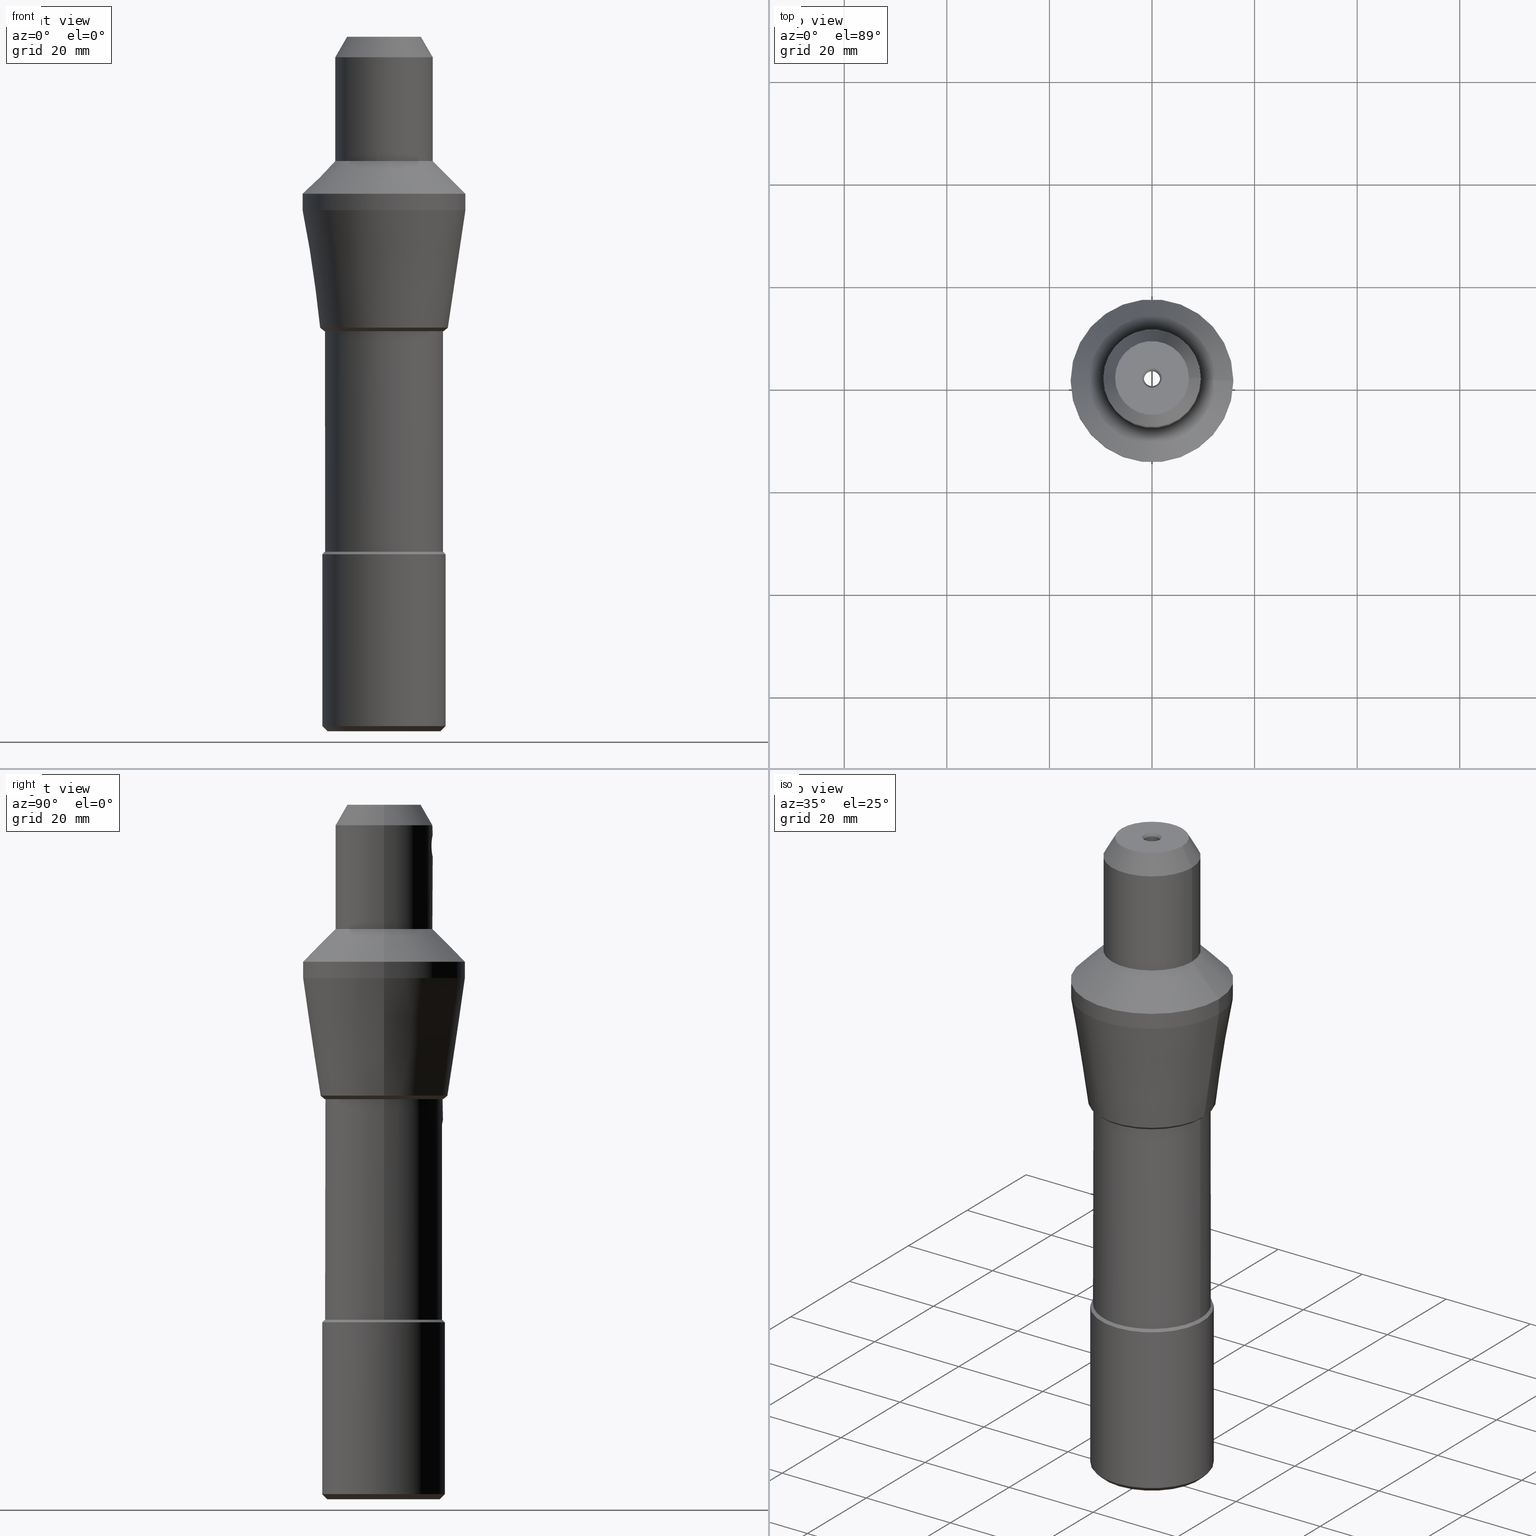
[diagram: canonical four-view strip — front | top / right | iso, engineering-drawing reading convention]
A machine part, canonical four-view strip (front | top / right | iso — engineering-drawing reading convention). The complete STEP part file that produces these views, byte-faithful:
ISO-10303-21;
HEADER;
FILE_DESCRIPTION (( 'STEP AP214' ),
    '1' );
FILE_NAME ('830-008-1.33.STEP',
    '2020-11-02T21:33:37',
    ( '' ),
    ( '' ),
    'SwSTEP 2.0',
    'SolidWorks 2020',
    '' );
FILE_SCHEMA (( 'AUTOMOTIVE_DESIGN' ));
ENDSEC;

DATA;
#1 = DIRECTION ( 'NONE',  ( 1.000000000000000000, 0.0000000000000000000, 0.0000000000000000000 ) ) ;
#2 = VECTOR ( 'NONE', #225, 1000.000000000000000 ) ;
#3 = MECHANICAL_DESIGN_GEOMETRIC_PRESENTATION_REPRESENTATION (  '', ( #96 ), #41 ) ;
#4 = DIRECTION ( 'NONE',  ( -0.0000000000000000000, -0.0000000000000000000, 1.000000000000000000 ) ) ;
#5 = CARTESIAN_POINT ( 'NONE',  ( 0.0000000000000000000, 0.7251645601360490190, 25.80000000000002558 ) ) ;
#6 = CARTESIAN_POINT ( 'NONE',  ( 0.0000000000000000000, 0.0000000000000000000, -23.59999999999975984 ) ) ;
#7 = DIRECTION ( 'NONE',  ( -0.0000000000000000000, -1.000000000000000000, -0.0000000000000000000 ) ) ;
#8 = EDGE_CURVE ( 'NONE', #590, #303, #624, .T. ) ;
#9 = CARTESIAN_POINT ( 'NONE',  ( 1.085126047791115322, 9.441393690589142906, 23.92289989804093153 ) ) ;
#10 = B_SPLINE_CURVE_WITH_KNOTS ( 'NONE', 3,
 ( #207, #213, #598, #203 ),
 .UNSPECIFIED., .F., .F.,
 ( 4, 4 ),
 ( 0.002821443156850665570, 0.004247716749108804840 ),
 .UNSPECIFIED. ) ;
#11 = DIRECTION ( 'NONE',  ( 1.000000000000000000, 0.0000000000000000000, 0.0000000000000000000 ) ) ;
#12 = CARTESIAN_POINT ( 'NONE',  ( -0.9689869363996819196, 1.265011497681876262, 27.72380231135396400 ) ) ;
#13 = VERTEX_POINT ( 'NONE', #524 ) ;
#14 = CARTESIAN_POINT ( 'NONE',  ( 2.100000000000000089, 42.79774680604187154, -36.35944640912221359 ) ) ;
#15 = AXIS2_PLACEMENT_3D ( 'NONE', #805, #691, #1 ) ;
#16 = VERTEX_POINT ( 'NONE', #577 ) ;
#17 = EDGE_CURVE ( 'NONE', #422, #798, #499, .T. ) ;
#18 = DIRECTION ( 'NONE',  ( -1.000000000000000000, 0.0000000000000000000, 0.0000000000000000000 ) ) ;
#19 = FACE_OUTER_BOUND ( 'NONE', #804, .T. ) ;
#20 = VERTEX_POINT ( 'NONE', #698 ) ;
#21 = CARTESIAN_POINT ( 'NONE',  ( 0.0000000000000000000, 0.0000000000000000000, -23.59999999999975984 ) ) ;
#22 = DIRECTION ( 'NONE',  ( 0.0000000000000000000, -0.0000000000000000000, 1.000000000000000000 ) ) ;
#23 = ORIENTED_EDGE ( 'NONE', *, *, #401, .T. ) ;
#24 = FACE_OUTER_BOUND ( 'NONE', #678, .T. ) ;
#25 = AXIS2_PLACEMENT_3D ( 'NONE', #729, #407, #151 ) ;
#26 = CARTESIAN_POINT ( 'NONE',  ( 1.411632161975112432, 0.7251645601360490190, 24.17833584263650692 ) ) ;
#27 = AXIS2_PLACEMENT_3D ( 'NONE', #531, #786, #220 ) ;
#28 = AXIS2_PLACEMENT_3D ( 'NONE', #472, #22, #593 ) ;
#29 = ORIENTED_EDGE ( 'NONE', *, *, #421, .T. ) ;
#30 = APPLICATION_PROTOCOL_DEFINITION ( 'draft international standard', 'automotive_design', 1998, #67 ) ;
#31 = DIRECTION ( 'NONE',  ( -0.0000000000000000000, -0.0000000000000000000, 1.000000000000000000 ) ) ;
#32 = CARTESIAN_POINT ( 'NONE',  ( 1.266608670461890407, 0.9663356702260388342, 24.05907208842330647 ) ) ;
#33 = EDGE_LOOP ( 'NONE', ( #232 ) ) ;
#34 = EDGE_CURVE ( 'NONE', #743, #152, #157, .T. ) ;
#35 = LINE ( 'NONE', #540, #765 ) ;
#36 = EDGE_LOOP ( 'NONE', ( #45 ) ) ;
#37 = ORIENTED_EDGE ( 'NONE', *, *, #401, .F. ) ;
#38 = PLANE ( 'NONE',  #753 ) ;
#39 = VECTOR ( 'NONE', #194, 1000.000000000000000 ) ;
#40 = EDGE_LOOP ( 'NONE', ( #23 ) ) ;
#41 =( GEOMETRIC_REPRESENTATION_CONTEXT ( 3 ) GLOBAL_UNCERTAINTY_ASSIGNED_CONTEXT ( ( #648 ) ) GLOBAL_UNIT_ASSIGNED_CONTEXT ( ( #719, #282, #795 ) ) REPRESENTATION_CONTEXT ( 'NONE', 'WORKASPACE' ) );
#42 = VERTEX_POINT ( 'NONE', #673 ) ;
#43 = ADVANCED_FACE ( 'NONE', ( #676, #365 ), #619, .T. ) ;
#44 = DIRECTION ( 'NONE',  ( 0.0000000000000000000, 0.0000000000000000000, -1.000000000000000000 ) ) ;
#45 = ORIENTED_EDGE ( 'NONE', *, *, #633, .F. ) ;
#46 = CARTESIAN_POINT ( 'NONE',  ( -2.100000000000000089, 11.86560154395885647, -100.5999999999998664 ) ) ;
#47 = EDGE_LOOP ( 'NONE', ( #605, #423, #594, #296 ) ) ;
#48 = DIRECTION ( 'NONE',  ( -0.0000000000000000000, -0.0000000000000000000, 1.000000000000000000 ) ) ;
#49 = ORIENTED_EDGE ( 'NONE', *, *, #392, .T. ) ;
#50 = CARTESIAN_POINT ( 'NONE',  ( -1.719978557535364549, 9.345186104629704005, 27.12051739696791230 ) ) ;
#51 = ORIENTED_EDGE ( 'NONE', *, *, #17, .T. ) ;
#52 = DIRECTION ( 'NONE',  ( -1.000000000000000000, 0.0000000000000000000, -0.0000000000000000000 ) ) ;
#53 = CARTESIAN_POINT ( 'NONE',  ( 1.467863262598873231, 11.41159724547885190, -27.92280294470764801 ) ) ;
#54 = AXIS2_PLACEMENT_3D ( 'NONE', #521, #322, #188 ) ;
#55 = AXIS2_PLACEMENT_3D ( 'NONE', #510, #66, #755 ) ;
#56 = CYLINDRICAL_SURFACE ( 'NONE', #15, 12.04999999999994920 ) ;
#57 = CONICAL_SURFACE ( 'NONE', #27, 12.04999999999994920, 0.7853981633974482790 ) ;
#58 = CARTESIAN_POINT ( 'NONE',  ( -2.100000000000000089, 42.79774680604187154, -36.35944640912221359 ) ) ;
#59 = EDGE_LOOP ( 'NONE', ( #541, #739, #297, #371 ) ) ;
#60 = ADVANCED_FACE ( 'NONE', ( #270 ), #383, .F. ) ;
#61 = CARTESIAN_POINT ( 'NONE',  ( -1.420791098050039336, 9.393697889959920388, 27.41979960619237389 ) ) ;
#62 = B_SPLINE_CURVE_WITH_KNOTS ( 'NONE', 3,
 ( #535, #410, #782, #218 ),
 .UNSPECIFIED., .F., .F.,
 ( 4, 4 ),
 ( 0.002523258221607827586, 0.003236126265176263953 ),
 .UNSPECIFIED. ) ;
#63 = CARTESIAN_POINT ( 'NONE',  ( -2.100000000000000089, 11.54999999999989413, -66.59999999999976694 ) ) ;
#64 = CARTESIAN_POINT ( 'NONE',  ( 0.0000000000000000000, 0.0000000000000000000, -101.5999999999998664 ) ) ;
#65 = CARTESIAN_POINT ( 'NONE',  ( 1.311922724764552406, 9.409715056579662118, 27.50912977286413152 ) ) ;
#66 = DIRECTION ( 'NONE',  ( 0.0000000000000000000, -0.0000000000000000000, 1.000000000000000000 ) ) ;
#67 = APPLICATION_CONTEXT ( 'automotive_design' ) ;
#68 = CARTESIAN_POINT ( 'NONE',  ( -1.078219977287355302, 1.172835807868646718, 27.66348308228828401 ) ) ;
#69 = CARTESIAN_POINT ( 'NONE',  ( 0.9524855186257653594, 9.453023983040029776, 27.73259253693215953 ) ) ;
#70 = CIRCLE ( 'NONE', #212, 11.49999999999998224 ) ;
#71 = DIRECTION ( 'NONE',  ( 0.0000000000000000000, -1.000000000000000000, 0.0000000000000000000 ) ) ;
#72 = EDGE_CURVE ( 'NONE', #303, #311, #651, .T. ) ;
#73 = CARTESIAN_POINT ( 'NONE',  ( 1.266878935582128163, 0.9659241473628297214, 27.54070789093612959 ) ) ;
#74 = CARTESIAN_POINT ( 'NONE',  ( 9.499999999999953815, 0.0000000000000000000, 29.80000000000018900 ) ) ;
#75 = FACE_OUTER_BOUND ( 'NONE', #793, .T. ) ;
#76 = CARTESIAN_POINT ( 'NONE',  ( -0.3034399793380838650, 1.564895221819775140, 27.93353750776525146 ) ) ;
#77 = CARTESIAN_POINT ( 'NONE',  ( 11.49999999999998224, 0.0000000000000000000, -23.59999999999975984 ) ) ;
#78 = CARTESIAN_POINT ( 'NONE',  ( 0.0000000000000000000, 0.0000000000000000000, -22.90768889564642663 ) ) ;
#79 = CARTESIAN_POINT ( 'NONE',  ( -2.100000000000000089, 10.35000000000002274, -34.51723925166061235 ) ) ;
#80 = CARTESIAN_POINT ( 'NONE',  ( 2.100000000000000089, 10.35000000000002274, -101.5999999999998380 ) ) ;
#81 = EDGE_CURVE ( 'NONE', #763, #763, #196, .T. ) ;
#82 = AXIS2_PLACEMENT_3D ( 'NONE', #14, #11, #200 ) ;
#83 = FACE_OUTER_BOUND ( 'NONE', #487, .T. ) ;
#84 = CARTESIAN_POINT ( 'NONE',  ( 1.078219977287355302, 1.172835807868646718, 23.93651691771177070 ) ) ;
#85 = CARTESIAN_POINT ( 'NONE',  ( 1.895866052159855819, 0.0000000000000000000, 33.80000000000018900 ) ) ;
#86 = CARTESIAN_POINT ( 'NONE',  ( 0.0000000000000000000, 0.0000000000000000000, -67.09999999999982379 ) ) ;
#87 = CARTESIAN_POINT ( 'NONE',  ( 0.0000000000000000000, 0.0000000000000000000, 33.80000000000018900 ) ) ;
#88 = ORIENTED_EDGE ( 'NONE', *, *, #144, .T. ) ;
#89 = DIRECTION ( 'NONE',  ( 1.000000000000000000, 0.0000000000000000000, 0.0000000000000000000 ) ) ;
#90 = CARTESIAN_POINT ( 'NONE',  ( 1.346189765837958241, 0.8525571496561314966, 24.12136930568467008 ) ) ;
#91 = ORIENTED_EDGE ( 'NONE', *, *, #592, .T. ) ;
#92 = DIRECTION ( 'NONE',  ( 1.000000000000000000, 0.0000000000000000000, 0.0000000000000000000 ) ) ;
#93 = AXIS2_PLACEMENT_3D ( 'NONE', #78, #4, #386 ) ;
#94 = EDGE_CURVE ( 'NONE', #323, #323, #199, .T. ) ;
#95 = CARTESIAN_POINT ( 'NONE',  ( -1.266878935582128163, 0.9659241473628297214, 24.05929210906393223 ) ) ;
#96 = STYLED_ITEM ( 'NONE', ( #409 ), #217 ) ;
#97 = AXIS2_PLACEMENT_3D ( 'NONE', #325, #256, #768 ) ;
#98 = VERTEX_POINT ( 'NONE', #145 ) ;
#99 = DIRECTION ( 'NONE',  ( -1.000000000000000000, 0.0000000000000000000, 0.0000000000000000000 ) ) ;
#100 = CARTESIAN_POINT ( 'NONE',  ( -0.7297437009996590174, 1.416423740711345358, 23.77341155943213380 ) ) ;
#101 = ADVANCED_FACE ( 'NONE', ( #762, #263, #756 ), #192, .F. ) ;
#102 = ORIENTED_EDGE ( 'NONE', *, *, #120, .T. ) ;
#103 = FACE_OUTER_BOUND ( 'NONE', #111, .T. ) ;
#104 = EDGE_CURVE ( 'NONE', #327, #327, #264, .T. ) ;
#105 = EDGE_LOOP ( 'NONE', ( #281, #543 ) ) ;
#106 = CARTESIAN_POINT ( 'NONE',  ( 0.0000000000000000000, 0.0000000000000000000, 29.80000000000018900 ) ) ;
#107 = CIRCLE ( 'NONE', #545, 5.749999999999921840 ) ;
#108 = ORIENTED_EDGE ( 'NONE', *, *, #179, .F. ) ;
#109 = ORIENTED_EDGE ( 'NONE', *, *, #453, .F. ) ;
#110 = FACE_OUTER_BOUND ( 'NONE', #554, .T. ) ;
#111 = EDGE_LOOP ( 'NONE', ( #354 ) ) ;
#112 = CARTESIAN_POINT ( 'NONE',  ( 1.324052285478831914, 9.409401896662016540, 24.08321091675676584 ) ) ;
#113 = ORIENTED_EDGE ( 'NONE', *, *, #81, .F. ) ;
#114 = DIRECTION ( 'NONE',  ( 1.000000000000000000, 0.0000000000000000000, 0.0000000000000000000 ) ) ;
#115 = ORIENTED_EDGE ( 'NONE', *, *, #300, .T. ) ;
#116 = B_SPLINE_CURVE_WITH_KNOTS ( 'NONE', 3,
 ( #275, #787, #95, #342, #717, #100, #778, #589, #712, #783, #542, #476, #774, #349, #84, #32, #90, #26 ),
 .UNSPECIFIED., .F., .F.,
 ( 4, 2, 2, 2, 2, 2, 2, 2, 4 ),
 ( 0.0000000000000000000, 0.0004551596521008836643, 0.0009103193042017673287, 0.001365478956302651047, 0.001820638608403534657, 0.002275798260504418268, 0.002730957912605302094, 0.003186117564706185488, 0.003641277216807069315 ),
 .UNSPECIFIED. ) ;
#117 = CARTESIAN_POINT ( 'NONE',  ( 1.864385287903619570, 9.315596766772621606, 26.87987381485267235 ) ) ;
#118 = EDGE_LOOP ( 'NONE', ( #467 ) ) ;
#119 = CARTESIAN_POINT ( 'NONE',  ( 0.0000000000000000000, 0.7251645601360490190, 25.80000000000002558 ) ) ;
#120 = EDGE_CURVE ( 'NONE', #590, #303, #725, .T. ) ;
#121 = EDGE_LOOP ( 'NONE', ( #215, #299, #473, #285 ) ) ;
#122 = CIRCLE ( 'NONE', #569, 11.49999999999998224 ) ;
#123 = DIRECTION ( 'NONE',  ( 0.0000000000000000000, 0.0000000000000000000, -1.000000000000000000 ) ) ;
#124 = AXIS2_PLACEMENT_3D ( 'NONE', #785, #664, #426 ) ;
#125 = DIRECTION ( 'NONE',  ( -0.0000000000000000000, -0.0000000000000000000, 1.000000000000000000 ) ) ;
#126 = CARTESIAN_POINT ( 'NONE',  ( -2.100000000000000089, 11.30663522008203792, -28.32452941635697741 ) ) ;
#127 = CARTESIAN_POINT ( 'NONE',  ( -0.2841779234836807611, 9.496757530763613175, 27.93579813919632571 ) ) ;
#128 = UNCERTAINTY_MEASURE_WITH_UNIT (LENGTH_MEASURE( 1.000000000000000082E-05 ), #527, 'distance_accuracy_value', 'NONE');
#129 = CARTESIAN_POINT ( 'NONE',  ( 0.0000000000000000000, 0.0000000000000000000, -101.5999999999998664 ) ) ;
#130 = CARTESIAN_POINT ( 'NONE',  ( -1.411632161975112432, 0.7251645601360490190, 27.42166415736354068 ) ) ;
#131 = CARTESIAN_POINT ( 'NONE',  ( -2.150085911535069005, 9.253492885439001725, 25.93940395948164124 ) ) ;
#132 = EDGE_CURVE ( 'NONE', #98, #496, #451, .T. ) ;
#133 = CARTESIAN_POINT ( 'NONE',  ( -2.100000000000000089, 10.35000000000002274, -101.5999999999998380 ) ) ;
#134 = DIRECTION ( 'NONE',  ( 1.000000000000000000, 0.0000000000000000000, 0.0000000000000000000 ) ) ;
#135 = CARTESIAN_POINT ( 'NONE',  ( 0.0000000000000000000, 0.0000000000000000000, 14.80000000000017479 ) ) ;
#136 = AXIS2_PLACEMENT_3D ( 'NONE', #630, #688, #379 ) ;
#137 = CIRCLE ( 'NONE', #612, 9.499999999999953815 ) ;
#138 = CIRCLE ( 'NONE', #224, 1.895866052159855819 ) ;
#139 = FACE_OUTER_BOUND ( 'NONE', #444, .T. ) ;
#140 = DIRECTION ( 'NONE',  ( -0.0000000000000000000, -0.0000000000000000000, 1.000000000000000000 ) ) ;
#141 = CARTESIAN_POINT ( 'NONE',  ( 0.2831112863718656669, 9.496794767148502459, 23.66403597530471004 ) ) ;
#142 = MANIFOLD_SOLID_BREP ( 'Cut-Extrude2', #172 ) ;
#143 = CARTESIAN_POINT ( 'NONE',  ( -2.100000000000000089, 10.84861742343229984, -101.5999999999998664 ) ) ;
#144 = EDGE_CURVE ( 'NONE', #806, #301, #35, .T. ) ;
#145 = CARTESIAN_POINT ( 'NONE',  ( -2.100000000000000089, 10.35000000000002274, -34.51723925166061235 ) ) ;
#146 = CARTESIAN_POINT ( 'NONE',  ( 1.586999999999949562, 0.0000000000000000000, 33.30000000000018900 ) ) ;
#147 = DIRECTION ( 'NONE',  ( -0.0000000000000000000, -0.0000000000000000000, 1.000000000000000000 ) ) ;
#148 = ADVANCED_FACE ( 'NONE', ( #259, #284 ), #482, .F. ) ;
#149 = AXIS2_PLACEMENT_3D ( 'NONE', #669, #230, #627 ) ;
#150 = DIRECTION ( 'NONE',  ( 1.000000000000000000, 0.0000000000000000000, 0.0000000000000000000 ) ) ;
#151 = DIRECTION ( 'NONE',  ( 1.000000000000000000, 0.0000000000000000000, 0.0000000000000000000 ) ) ;
#152 = VERTEX_POINT ( 'NONE', #655 ) ;
#153 = FACE_OUTER_BOUND ( 'NONE', #607, .T. ) ;
#154 = PLANE ( 'NONE',  #28 ) ;
#155 = ORIENTED_EDGE ( 'NONE', *, *, #443, .T. ) ;
#156 = ADVANCED_FACE ( 'NONE', ( #480, #660 ), #154, .F. ) ;
#157 = B_SPLINE_CURVE_WITH_KNOTS ( 'NONE', 3,
 ( #306, #167, #53, #818, #425, #249, #431, #184, #689, #126 ),
 .UNSPECIFIED., .F., .F.,
 ( 4, 2, 2, 2, 4 ),
 ( 0.0000000000000000000, 0.001130883958047212371, 0.002261767916094424742, 0.003392651874141637113, 0.004523535832188849484 ),
 .UNSPECIFIED. ) ;
#158 = CARTESIAN_POINT ( 'NONE',  ( 0.0000000000000000000, 0.0000000000000000000, 17.80000000000023164 ) ) ;
#159 = ORIENTED_EDGE ( 'NONE', *, *, #515, .F. ) ;
#160 = FACE_OUTER_BOUND ( 'NONE', #537, .T. ) ;
#161 = DIRECTION ( 'NONE',  ( 0.0000000000000000000, 0.0000000000000000000, -1.000000000000000000 ) ) ;
#162 = EDGE_LOOP ( 'NONE', ( #556 ) ) ;
#163 = FACE_OUTER_BOUND ( 'NONE', #730, .T. ) ;
#164 = EDGE_CURVE ( 'NONE', #42, #806, #445, .T. ) ;
#165 = EDGE_LOOP ( 'NONE', ( #685 ) ) ;
#166 = CYLINDRICAL_SURFACE ( 'NONE', #211, 9.499999999999953815 ) ;
#167 = CARTESIAN_POINT ( 'NONE',  ( 1.795522252043246558, 11.36318637418432331, -28.10288945346085754 ) ) ;
#168 = ORIENTED_EDGE ( 'NONE', *, *, #291, .F. ) ;
#169 = DIRECTION ( 'NONE',  ( 0.0000000000000000000, -0.0000000000000000000, 1.000000000000000000 ) ) ;
#170 = AXIS2_PLACEMENT_3D ( 'NONE', #119, #424, #732 ) ;
#171 = CARTESIAN_POINT ( 'NONE',  ( 2.100000000000000089, 10.35000000000002274, -34.51723925166061235 ) ) ;
#172 = CLOSED_SHELL ( 'NONE', ( #538, #490, #287, #376, #658, #773, #101, #337, #613, #148, #204, #737, #326, #705, #623, #571, #43, #505, #525, #156, #260, #385, #417, #60, #690, #355, #547 ) ) ;
#173 = CARTESIAN_POINT ( 'NONE',  ( -1.311632562071472163, 9.409753082532281709, 24.09066695454700380 ) ) ;
#174 = ORIENTED_EDGE ( 'NONE', *, *, #94, .T. ) ;
#175 = DIRECTION ( 'NONE',  ( -0.0000000000000000000, -0.0000000000000000000, 1.000000000000000000 ) ) ;
#176 = DIRECTION ( 'NONE',  ( 0.0000000000000000000, 0.0000000000000000000, -1.000000000000000000 ) ) ;
#177 = CARTESIAN_POINT ( 'NONE',  ( -0.9544398840162214848, 9.452831810159471715, 27.73165954105640552 ) ) ;
#178 = ORIENTED_EDGE ( 'NONE', *, *, #144, .F. ) ;
#179 = EDGE_CURVE ( 'NONE', #496, #798, #411, .T. ) ;
#180 = DIRECTION ( 'NONE',  ( -0.0000000000000000000, -0.0000000000000000000, 1.000000000000000000 ) ) ;
#181 = ORIENTED_EDGE ( 'NONE', *, *, #764, .F. ) ;
#182 = CARTESIAN_POINT ( 'NONE',  ( 2.093657991331931090, 9.267089453319414361, 26.36489831514277071 ) ) ;
#183 = DIRECTION ( 'NONE',  ( 1.000000000000000000, 0.0000000000000000000, 0.0000000000000000000 ) ) ;
#184 = CARTESIAN_POINT ( 'NONE',  ( -1.467469665440356064, 11.41165974144372086, -27.92256978922634758 ) ) ;
#185 = VECTOR ( 'NONE', #463, 1000.000000000000000 ) ;
#186 = CARTESIAN_POINT ( 'NONE',  ( -0.5607483400623441971, 9.484446319602861664, 27.88037306334883070 ) ) ;
#187 = FACE_OUTER_BOUND ( 'NONE', #162, .T. ) ;
#188 = DIRECTION ( 'NONE',  ( 1.000000000000000000, 0.0000000000000000000, 0.0000000000000000000 ) ) ;
#189 = EDGE_CURVE ( 'NONE', #433, #590, #116, .T. ) ;
#190 = CARTESIAN_POINT ( 'NONE',  ( 1.708774579096241863, 9.345392718376819730, 27.11230689840081354 ) ) ;
#191 = FACE_OUTER_BOUND ( 'NONE', #408, .T. ) ;
#192 = CYLINDRICAL_SURFACE ( 'NONE', #330, 1.586999999999949562 ) ;
#193 = VERTEX_POINT ( 'NONE', #657 ) ;
#194 = DIRECTION ( 'NONE',  ( -0.0000000000000000000, -0.0000000000000000000, 1.000000000000000000 ) ) ;
#195 = PRESENTATION_STYLE_ASSIGNMENT (( #642 ) ) ;
#196 = CIRCLE ( 'NONE', #54, 15.87499999999994493 ) ;
#197 = VERTEX_POINT ( 'NONE', #85 ) ;
#198 = AXIS2_PLACEMENT_3D ( 'NONE', #106, #746, #114 ) ;
#199 = CIRCLE ( 'NONE', #687, 5.749999999999921840 ) ;
#200 = DIRECTION ( 'NONE',  ( 0.0000000000000000000, 0.0000000000000000000, -1.000000000000000000 ) ) ;
#201 = CARTESIAN_POINT ( 'NONE',  ( 0.0000000000000000000, 0.0000000000000000000, 4.364367297826535541 ) ) ;
#202 = VERTEX_POINT ( 'NONE', #587 ) ;
#203 = CARTESIAN_POINT ( 'NONE',  ( 2.100000000000000089, 11.86560154395885647, -100.5999999999998664 ) ) ;
#204 = ADVANCED_FACE ( 'NONE', ( #19, #209 ), #586, .F. ) ;
#205 = FILL_AREA_STYLE ('',( #329 ) ) ;
#206 = VERTEX_POINT ( 'NONE', #146 ) ;
#207 = CARTESIAN_POINT ( 'NONE',  ( 2.100000000000000089, 10.84861742343229984, -101.5999999999998664 ) ) ;
#208 = PRODUCT_RELATED_PRODUCT_CATEGORY ( 'part', '', ( #614 ) ) ;
#209 = FACE_OUTER_BOUND ( 'NONE', #781, .T. ) ;
#210 = ORIENTED_EDGE ( 'NONE', *, *, #606, .F. ) ;
#211 = AXIS2_PLACEMENT_3D ( 'NONE', #368, #48, #245 ) ;
#212 = AXIS2_PLACEMENT_3D ( 'NONE', #539, #341, #465 ) ;
#213 = CARTESIAN_POINT ( 'NONE',  ( 2.100000000000000089, 11.18787052899706858, -101.2669296695036252 ) ) ;
#214 = CARTESIAN_POINT ( 'NONE',  ( -1.411632161975112432, 0.7251645601360490190, 4.364367297826535541 ) ) ;
#215 = ORIENTED_EDGE ( 'NONE', *, *, #392, .F. ) ;
#216 = EDGE_CURVE ( 'NONE', #197, #197, #138, .T. ) ;
#217 = ADVANCED_BREP_SHAPE_REPRESENTATION ( '830-008-1.33', ( #142, #124 ), #812 ) ;
#218 = CARTESIAN_POINT ( 'NONE',  ( 2.100000000000000089, 11.35748651771145923, -66.59999999999976694 ) ) ;
#219 = VERTEX_POINT ( 'NONE', #599 ) ;
#220 = DIRECTION ( 'NONE',  ( -1.000000000000000000, 0.0000000000000000000, 0.0000000000000000000 ) ) ;
#221 = DIRECTION ( 'NONE',  ( 1.000000000000000000, 0.0000000000000000000, 0.0000000000000000000 ) ) ;
#222 = ORIENTED_EDGE ( 'NONE', *, *, #715, .F. ) ;
#223 = EDGE_CURVE ( 'NONE', #202, #202, #559, .T. ) ;
#224 = AXIS2_PLACEMENT_3D ( 'NONE', #466, #403, #280 ) ;
#225 = DIRECTION ( 'NONE',  ( -0.0000000000000000000, -0.0000000000000000000, 1.000000000000000000 ) ) ;
#226 = AXIS2_PLACEMENT_3D ( 'NONE', #471, #92, #271 ) ;
#227 = VECTOR ( 'NONE', #176, 1000.000000000000000 ) ;
#228 = ORIENTED_EDGE ( 'NONE', *, *, #750, .F. ) ;
#229 = ORIENTED_EDGE ( 'NONE', *, *, #104, .F. ) ;
#230 = DIRECTION ( 'NONE',  ( -0.0000000000000000000, -0.0000000000000000000, 1.000000000000000000 ) ) ;
#231 = EDGE_LOOP ( 'NONE', ( #168 ) ) ;
#232 = ORIENTED_EDGE ( 'NONE', *, *, #562, .F. ) ;
#233 = FACE_OUTER_BOUND ( 'NONE', #501, .T. ) ;
#234 = EDGE_LOOP ( 'NONE', ( #815 ) ) ;
#235 = B_SPLINE_CURVE_WITH_KNOTS ( 'NONE', 3,
 ( #749, #608, #735, #450 ),
 .UNSPECIFIED., .F., .F.,
 ( 4, 4 ),
 ( 0.002523258221607827586, 0.003236126265176263953 ),
 .UNSPECIFIED. ) ;
#236 = CARTESIAN_POINT ( 'NONE',  ( -1.718128041106889770, 9.345485675796680880, 24.47763728572767405 ) ) ;
#237 = ORIENTED_EDGE ( 'NONE', *, *, #764, .T. ) ;
#238 = CARTESIAN_POINT ( 'NONE',  ( 0.0000000000000000000, 0.0000000000000000000, 33.80000000000018900 ) ) ;
#239 = CIRCLE ( 'NONE', #149, 11.54999999999989413 ) ;
#240 = DIRECTION ( 'NONE',  ( -0.0000000000000000000, -0.0000000000000000000, 1.000000000000000000 ) ) ;
#241 = VECTOR ( 'NONE', #261, 1000.000000000000000 ) ;
#242 = EDGE_CURVE ( 'NONE', #311, #433, #724, .T. ) ;
#243 = CARTESIAN_POINT ( 'NONE',  ( -1.878053057077292642, 9.313170279370908133, 26.88404759585064951 ) ) ;
#244 = EDGE_LOOP ( 'NONE', ( #788 ) ) ;
#245 = DIRECTION ( 'NONE',  ( 1.000000000000000000, 0.0000000000000000000, 0.0000000000000000000 ) ) ;
#246 = ORIENTED_EDGE ( 'NONE', *, *, #679, .F. ) ;
#247 = CARTESIAN_POINT ( 'NONE',  ( 1.618246020658700601, 9.361697275855199507, 27.22247114574780724 ) ) ;
#248 = CARTESIAN_POINT ( 'NONE',  ( 0.0000000000000000000, 0.7251645601360490190, 25.80000000000002558 ) ) ;
#249 = CARTESIAN_POINT ( 'NONE',  ( -0.3790474823127402138, 11.50005798455130090, -27.60132592127435558 ) ) ;
#250 = CARTESIAN_POINT ( 'NONE',  ( -2.136016940763032057, 9.256793651367043907, 26.08239612714654498 ) ) ;
#251 = DIRECTION ( 'NONE',  ( -0.0000000000000000000, -0.0000000000000000000, 1.000000000000000000 ) ) ;
#252 = EDGE_CURVE ( 'NONE', #42, #219, #418, .T. ) ;
#253 = AXIS2_PLACEMENT_3D ( 'NONE', #817, #548, #356 ) ;
#254 = CARTESIAN_POINT ( 'NONE',  ( 5.421010862427522170E-17, 9.499999999999953815, 23.65000000000001279 ) ) ;
#255 = DIRECTION ( 'NONE',  ( -0.0000000000000000000, -0.0000000000000000000, 1.000000000000000000 ) ) ;
#256 = DIRECTION ( 'NONE',  ( 0.0000000000000000000, -1.000000000000000000, -0.0000000000000000000 ) ) ;
#257 = APPLICATION_PROTOCOL_DEFINITION ( 'draft international standard', 'automotive_design', 1998, #346 ) ;
#258 = DIRECTION ( 'NONE',  ( 1.000000000000000000, 0.0000000000000000000, 0.0000000000000000000 ) ) ;
#259 = FACE_OUTER_BOUND ( 'NONE', #33, .T. ) ;
#260 = ADVANCED_FACE ( 'NONE', ( #163 ), #650, .T. ) ;
#261 = DIRECTION ( 'NONE',  ( 0.0000000000000000000, 1.000000000000000000, 0.0000000000000000000 ) ) ;
#262 = LINE ( 'NONE', #63, #400 ) ;
#263 = FACE_OUTER_BOUND ( 'NONE', #731, .T. ) ;
#264 = CIRCLE ( 'NONE', #485, 15.87499999999994493 ) ;
#265 = CARTESIAN_POINT ( 'NONE',  ( 5.421010862427522170E-17, 9.499999999999953815, 23.65000000000001279 ) ) ;
#266 = AXIS2_PLACEMENT_3D ( 'NONE', #742, #684, #680 ) ;
#267 = EDGE_CURVE ( 'NONE', #311, #433, #359, .T. ) ;
#268 = AXIS2_PLACEMENT_3D ( 'NONE', #585, #479, #99 ) ;
#269 = CARTESIAN_POINT ( 'NONE',  ( 0.0000000000000000000, 0.0000000000000000000, -98.59999999999986642 ) ) ;
#270 = FACE_OUTER_BOUND ( 'NONE', #367, .T. ) ;
#271 = DIRECTION ( 'NONE',  ( 0.0000000000000000000, 0.0000000000000000000, -1.000000000000000000 ) ) ;
#272 = DIRECTION ( 'NONE',  ( -0.0000000000000000000, -0.0000000000000000000, 1.000000000000000000 ) ) ;
#273 = FACE_OUTER_BOUND ( 'NONE', #121, .T. ) ;
#274 = EDGE_CURVE ( 'NONE', #98, #422, #672, .T. ) ;
#275 = CARTESIAN_POINT ( 'NONE',  ( -1.411632161975112432, 0.7251645601360490190, 24.17833584263650692 ) ) ;
#276 = EDGE_LOOP ( 'NONE', ( #681 ) ) ;
#277 = CIRCLE ( 'NONE', #483, 1.586999999999949562 ) ;
#278 = CARTESIAN_POINT ( 'NONE',  ( -2.100000000000000089, 11.35748651771145923, -66.59999999999976694 ) ) ;
#279 = AXIS2_PLACEMENT_3D ( 'NONE', #721, #486, #532 ) ;
#280 = DIRECTION ( 'NONE',  ( 1.000000000000000000, 0.0000000000000000000, 0.0000000000000000000 ) ) ;
#281 = ORIENTED_EDGE ( 'NONE', *, *, #8, .T. ) ;
#282 =( NAMED_UNIT ( * ) PLANE_ANGLE_UNIT ( ) SI_UNIT ( $, .RADIAN. ) );
#283 = DIRECTION ( 'NONE',  ( 0.0000000000000000000, 0.0000000000000000000, -1.000000000000000000 ) ) ;
#284 = FACE_BOUND ( 'NONE', #40, .T. ) ;
#285 = ORIENTED_EDGE ( 'NONE', *, *, #313, .F. ) ;
#286 = SHAPE_DEFINITION_REPRESENTATION ( #470, #217 ) ;
#287 = ADVANCED_FACE ( 'NONE', ( #110, #233 ), #364, .T. ) ;
#288 = DIRECTION ( 'NONE',  ( -0.0000000000000000000, -0.0000000000000000000, 1.000000000000000000 ) ) ;
#289 = ORIENTED_EDGE ( 'NONE', *, *, #633, .T. ) ;
#290 = ORIENTED_EDGE ( 'NONE', *, *, #252, .F. ) ;
#291 = EDGE_CURVE ( 'NONE', #206, #206, #429, .T. ) ;
#292 = AXIS2_PLACEMENT_3D ( 'NONE', #506, #251, #696 ) ;
#293 = DIRECTION ( 'NONE',  ( 1.000000000000000000, 0.0000000000000000000, 0.0000000000000000000 ) ) ;
#294 = PRESENTATION_LAYER_ASSIGNMENT (  '', '', ( #96 ) ) ;
#295 = ORIENTED_EDGE ( 'NONE', *, *, #803, .F. ) ;
#296 = ORIENTED_EDGE ( 'NONE', *, *, #242, .F. ) ;
#297 = ORIENTED_EDGE ( 'NONE', *, *, #427, .T. ) ;
#298 = DIRECTION ( 'NONE',  ( 1.000000000000000000, -0.0000000000000000000, -0.0000000000000000000 ) ) ;
#299 = ORIENTED_EDGE ( 'NONE', *, *, #715, .T. ) ;
#300 = EDGE_CURVE ( 'NONE', #331, #331, #305, .T. ) ;
#301 = VERTEX_POINT ( 'NONE', #420 ) ;
#302 = CARTESIAN_POINT ( 'NONE',  ( 1.932326067381938017, 9.301566654919163568, 24.84692496624836622 ) ) ;
#303 = VERTEX_POINT ( 'NONE', #799 ) ;
#304 = FACE_OUTER_BOUND ( 'NONE', #544, .T. ) ;
#305 = CIRCLE ( 'NONE', #198, 9.499999999999953815 ) ;
#306 = CARTESIAN_POINT ( 'NONE',  ( 2.100000000000000089, 11.30663522008203792, -28.32452941635697741 ) ) ;
#307 = AXIS2_PLACEMENT_3D ( 'NONE', #86, #338, #776 ) ;
#308 = COLOUR_RGB ( '',0.5019607843137254832, 0.5019607843137254832, 0.5019607843137254832 ) ;
#309 = CARTESIAN_POINT ( 'NONE',  ( 0.5640542536392166850, 9.486801734380327034, 27.89354080613243170 ) ) ;
#310 = FACE_OUTER_BOUND ( 'NONE', #105, .T. ) ;
#311 = VERTEX_POINT ( 'NONE', #360 ) ;
#312 = CARTESIAN_POINT ( 'NONE',  ( -1.421749722328163879, 9.393542694191513220, 24.18115642957892675 ) ) ;
#313 = EDGE_CURVE ( 'NONE', #601, #801, #239, .T. ) ;
#314 = DIRECTION ( 'NONE',  ( 0.0000000000000000000, 0.0000000000000000000, -1.000000000000000000 ) ) ;
#315 =( NAMED_UNIT ( * ) PLANE_ANGLE_UNIT ( ) SI_UNIT ( $, .RADIAN. ) );
#316 = DIRECTION ( 'NONE',  ( -0.0000000000000000000, -0.0000000000000000000, 1.000000000000000000 ) ) ;
#317 = DIRECTION ( 'NONE',  ( -0.0000000000000000000, -0.0000000000000000000, 1.000000000000000000 ) ) ;
#318 = DIRECTION ( 'NONE',  ( 1.000000000000000000, 0.0000000000000000000, 0.0000000000000000000 ) ) ;
#319 = AXIS2_PLACEMENT_3D ( 'NONE', #87, #791, #221 ) ;
#320 = VERTEX_POINT ( 'NONE', #77 ) ;
#321 = CYLINDRICAL_SURFACE ( 'NONE', #136, 2.150000000000012790 ) ;
#322 = DIRECTION ( 'NONE',  ( -0.0000000000000000000, -0.0000000000000000000, 1.000000000000000000 ) ) ;
#323 = VERTEX_POINT ( 'NONE', #640 ) ;
#324 = PLANE ( 'NONE',  #82 ) ;
#325 = CARTESIAN_POINT ( 'NONE',  ( -2.100000000000000089, 10.35000000000002274, -34.51723925166061235 ) ) ;
#326 = ADVANCED_FACE ( 'NONE', ( #618, #304 ), #727, .F. ) ;
#327 = VERTEX_POINT ( 'NONE', #647 ) ;
#328 = FACE_BOUND ( 'NONE', #663, .T. ) ;
#329 = FILL_AREA_STYLE_COLOUR ( '', #308 ) ;
#330 = AXIS2_PLACEMENT_3D ( 'NONE', #201, #393, #576 ) ;
#331 = VERTEX_POINT ( 'NONE', #74 ) ;
#332 = AXIS2_PLACEMENT_3D ( 'NONE', #6, #517, #454 ) ;
#333 = AXIS2_PLACEMENT_3D ( 'NONE', #347, #31, #150 ) ;
#334 = MECHANICAL_DESIGN_GEOMETRIC_PRESENTATION_REPRESENTATION (  '', ( #792 ), #797 ) ;
#335 = DIRECTION ( 'NONE',  ( -1.000000000000000000, 0.0000000000000000000, -0.0000000000000000000 ) ) ;
#336 = CARTESIAN_POINT ( 'NONE',  ( 0.0000000000000000000, 0.0000000000000000000, -100.5999999999998664 ) ) ;
#337 = ADVANCED_FACE ( 'NONE', ( #103, #555, #438 ), #166, .T. ) ;
#338 = DIRECTION ( 'NONE',  ( -0.0000000000000000000, -0.0000000000000000000, 1.000000000000000000 ) ) ;
#339 = CARTESIAN_POINT ( 'NONE',  ( 0.0000000000000000000, 10.35000000000002274, -101.5999999999998664 ) ) ;
#340 = ORIENTED_EDGE ( 'NONE', *, *, #291, .T. ) ;
#341 = DIRECTION ( 'NONE',  ( -0.0000000000000000000, -0.0000000000000000000, 1.000000000000000000 ) ) ;
#342 = CARTESIAN_POINT ( 'NONE',  ( -1.079138104062028702, 1.171943961220725416, 23.93707027739900184 ) ) ;
#343 = EDGE_LOOP ( 'NONE', ( #229 ) ) ;
#344 = B_SPLINE_CURVE_WITH_KNOTS ( 'NONE', 3,
 ( #254, #682, #500, #620, #440, #757, #686, #173, #312, #236, #752, #816, #504, #819, #563, #131, #250, #810, #748, #243, #50, #61, #738, #508, #177, #566, #186, #127, #384, #436, #309, #69, #632, #65, #512, #247, #190, #117, #449, #182, #677, #694, #366, #636, #370, #302, #553, #495, #432, #112, #9, #452, #643, #141, #519, #265 ),
 .UNSPECIFIED., .T., .F.,
 ( 4, 2, 2, 2, 2, 2, 2, 2, 2, 2, 2, 2, 2, 2, 2, 2, 2, 2, 2, 2, 2, 2, 2, 2, 2, 2, 2, 4 ),
 ( 0.0000000000000000000, 0.0004214304578532323056, 0.0008428609157064646112, 0.001264291373559696917, 0.001685721831412929222, 0.002528582747119400339, 0.002950013204972636114, 0.003371443662825871889, 0.003792874120679106797, 0.004214304578532342138, 0.005057165494238813688, 0.005478595952092049463, 0.005900026409945285238, 0.006321456867798520146, 0.006742887325651755921, 0.007585748241358226604, 0.008007178699211463246, 0.008428609157064698154, 0.008850039614917933062, 0.009271470072771167970, 0.01011433098847764993, 0.01053576144633089524, 0.01095719190418414056, 0.01137862236203738588, 0.01180005281989063293, 0.01264291373559713050, 0.01306434419345038275, 0.01348577465130363674 ),
 .UNSPECIFIED. ) ;
#345 = CIRCLE ( 'NONE', #292, 5.049999999999943867 ) ;
#346 = APPLICATION_CONTEXT ( 'automotive_design' ) ;
#347 = CARTESIAN_POINT ( 'NONE',  ( 0.0000000000000000000, 0.0000000000000000000, 4.364367297826535541 ) ) ;
#348 = VECTOR ( 'NONE', #240, 1000.000000000000000 ) ;
#349 = CARTESIAN_POINT ( 'NONE',  ( 0.9689869363996819196, 1.265011497681876262, 23.87619768864608716 ) ) ;
#350 = ORIENTED_EDGE ( 'NONE', *, *, #132, .T. ) ;
#351 = SURFACE_SIDE_STYLE ('',( #610 ) ) ;
#352 = FACE_OUTER_BOUND ( 'NONE', #734, .T. ) ;
#353 = CARTESIAN_POINT ( 'NONE',  ( -2.100000000000000089, 11.86560154395885647, 4.364367297826535541 ) ) ;
#354 = ORIENTED_EDGE ( 'NONE', *, *, #300, .F. ) ;
#355 = ADVANCED_FACE ( 'NONE', ( #434 ), #38, .T. ) ;
#356 = DIRECTION ( 'NONE',  ( 0.0000000000000000000, -0.0000000000000000000, 1.000000000000000000 ) ) ;
#357 = EDGE_LOOP ( 'NONE', ( #340 ) ) ;
#358 = ORIENTED_EDGE ( 'NONE', *, *, #223, .F. ) ;
#359 = CIRCLE ( 'NONE', #170, 2.150000000000012790 ) ;
#360 = CARTESIAN_POINT ( 'NONE',  ( -1.411632161975112432, 0.7251645601360490190, 27.42166415736354068 ) ) ;
#361 = EDGE_LOOP ( 'NONE', ( #290, #533, #88, #222 ) ) ;
#362 = ORIENTED_EDGE ( 'NONE', *, *, #592, .F. ) ;
#363 = EDGE_CURVE ( 'NONE', #609, #152, #493, .T. ) ;
#364 = CYLINDRICAL_SURFACE ( 'NONE', #442, 11.49999999999998224 ) ;
#365 = FACE_OUTER_BOUND ( 'NONE', #276, .T. ) ;
#366 = CARTESIAN_POINT ( 'NONE',  ( 2.136262591907398090, 9.256736455099501271, 25.51954219587302930 ) ) ;
#367 = EDGE_LOOP ( 'NONE', ( #565, #617, #51, #108 ) ) ;
#368 = CARTESIAN_POINT ( 'NONE',  ( 0.0000000000000000000, 0.0000000000000000000, 4.364367297826535541 ) ) ;
#369 = ORIENTED_EDGE ( 'NONE', *, *, #267, .T. ) ;
#370 = CARTESIAN_POINT ( 'NONE',  ( 2.039917766189375925, 9.278564639736726960, 25.10647886994743061 ) ) ;
#371 = ORIENTED_EDGE ( 'NONE', *, *, #646, .F. ) ;
#372 = PRESENTATION_LAYER_ASSIGNMENT (  '', '', ( #792 ) ) ;
#373 = CARTESIAN_POINT ( 'NONE',  ( 0.0000000000000000000, 11.54999999999989413, -66.59999999999976694 ) ) ;
#374 = VECTOR ( 'NONE', #802, 1000.000000000000000 ) ;
#375 = ORIENTED_EDGE ( 'NONE', *, *, #34, .T. ) ;
#376 = ADVANCED_FACE ( 'NONE', ( #502 ), #622, .F. ) ;
#377 = DIRECTION ( 'NONE',  ( -1.000000000000000000, 0.0000000000000000000, 0.0000000000000000000 ) ) ;
#378 = PRODUCT_DEFINITION_CONTEXT ( 'detailed design', #67, 'design' ) ;
#379 = DIRECTION ( 'NONE',  ( 0.0000000000000000000, 0.0000000000000000000, -1.000000000000000000 ) ) ;
#380 = ORIENTED_EDGE ( 'NONE', *, *, #462, .T. ) ;
#381 = DIRECTION ( 'NONE',  ( 0.0000000000000000000, 1.000000000000000000, 0.0000000000000000000 ) ) ;
#382 = CARTESIAN_POINT ( 'NONE',  ( -1.411632161975112432, 0.7251645601360490190, 24.17833584263650692 ) ) ;
#383 = PLANE ( 'NONE',  #97 ) ;
#384 = CARTESIAN_POINT ( 'NONE',  ( -0.1414577506259510065, 9.499986733462323585, 27.94994138041036535 ) ) ;
#385 = ADVANCED_FACE ( 'NONE', ( #310 ), #564, .T. ) ;
#386 = DIRECTION ( 'NONE',  ( 1.000000000000000000, 0.0000000000000000000, 0.0000000000000000000 ) ) ;
#387 = CARTESIAN_POINT ( 'NONE',  ( 0.0000000000000000000, 0.0000000000000000000, 0.0000000000000000000 ) ) ;
#388 = COLOUR_RGB ( '',0.5019607843137254832, 0.5019607843137254832, 0.5019607843137254832 ) ;
#389 = CARTESIAN_POINT ( 'NONE',  ( 5.049999999999943867, 0.0000000000000000000, -97.59999999999980957 ) ) ;
#390 = VECTOR ( 'NONE', #604, 1000.000000000000000 ) ;
#391 = CARTESIAN_POINT ( 'NONE',  ( 0.0000000000000000000, 0.0000000000000000000, -101.5999999999998664 ) ) ;
#392 = EDGE_CURVE ( 'NONE', #219, #601, #235, .T. ) ;
#393 = DIRECTION ( 'NONE',  ( -0.0000000000000000000, -0.0000000000000000000, 1.000000000000000000 ) ) ;
#394 = DIRECTION ( 'NONE',  ( 1.000000000000000000, 0.0000000000000000000, 0.0000000000000000000 ) ) ;
#395 = DIRECTION ( 'NONE',  ( 1.000000000000000000, 0.0000000000000000000, 0.0000000000000000000 ) ) ;
#396 = CARTESIAN_POINT ( 'NONE',  ( -0.7261791970228671511, 1.418398232511521417, 27.82795828110326397 ) ) ;
#397 = CARTESIAN_POINT ( 'NONE',  ( 0.0000000000000000000, 9.499999999999953815, 23.65000000000001279 ) ) ;
#398 = DIRECTION ( 'NONE',  ( -0.0000000000000000000, -0.0000000000000000000, 1.000000000000000000 ) ) ;
#399 = CARTESIAN_POINT ( 'NONE',  ( -1.266608670461890407, 0.9663356702260388342, 27.54092791157674114 ) ) ;
#400 = VECTOR ( 'NONE', #71, 1000.000000000000000 ) ;
#401 = EDGE_CURVE ( 'NONE', #703, #703, #345, .T. ) ;
#402 = DIRECTION ( 'NONE',  ( 1.000000000000000000, 0.0000000000000000000, 0.0000000000000000000 ) ) ;
#403 = DIRECTION ( 'NONE',  ( -0.0000000000000000000, -0.0000000000000000000, 1.000000000000000000 ) ) ;
#404 = EDGE_LOOP ( 'NONE', ( #246 ) ) ;
#405 = CARTESIAN_POINT ( 'NONE',  ( -2.100000000000000089, 11.04999999999994920, -101.5999999999998664 ) ) ;
#406 = FACE_BOUND ( 'NONE', #492, .T. ) ;
#407 = DIRECTION ( 'NONE',  ( -0.0000000000000000000, -0.0000000000000000000, 1.000000000000000000 ) ) ;
#408 = EDGE_LOOP ( 'NONE', ( #561, #507, #412, #616 ) ) ;
#409 = PRESENTATION_STYLE_ASSIGNMENT (( #474 ) ) ;
#410 = CARTESIAN_POINT ( 'NONE',  ( 2.100000000000000089, 11.69628640376114603, -66.93327585153961934 ) ) ;
#411 = LINE ( 'NONE', #339, #390 ) ;
#412 = ORIENTED_EDGE ( 'NONE', *, *, #750, .T. ) ;
#413 = VECTOR ( 'NONE', #700, 1000.000000000000000 ) ;
#414 = CONICAL_SURFACE ( 'NONE', #779, 1.586999999999949562, 0.8569145456572849762 ) ;
#415 = CARTESIAN_POINT ( 'NONE',  ( -2.100000000000000089, 11.52684344621852119, -100.9335741583049639 ) ) ;
#416 = AXIS2_PLACEMENT_3D ( 'NONE', #5, #7, #582 ) ;
#417 = ADVANCED_FACE ( 'NONE', ( #187, #447 ), #321, .F. ) ;
#418 = LINE ( 'NONE', #353, #2 ) ;
#419 = ORIENTED_EDGE ( 'NONE', *, *, #462, .F. ) ;
#420 = CARTESIAN_POINT ( 'NONE',  ( 2.100000000000000089, 11.86560154395885647, -67.09999999999982379 ) ) ;
#421 = EDGE_CURVE ( 'NONE', #552, #549, #809, .T. ) ;
#422 = VERTEX_POINT ( 'NONE', #692 ) ;
#423 = ORIENTED_EDGE ( 'NONE', *, *, #8, .F. ) ;
#424 = DIRECTION ( 'NONE',  ( -0.0000000000000000000, -1.000000000000000000, -0.0000000000000000000 ) ) ;
#425 = CARTESIAN_POINT ( 'NONE',  ( 0.3825577658635889167, 11.49994174757712706, -27.60174131196035319 ) ) ;
#426 = DIRECTION ( 'NONE',  ( 1.000000000000000000, 0.0000000000000000000, 0.0000000000000000000 ) ) ;
#427 = EDGE_CURVE ( 'NONE', #801, #491, #820, .T. ) ;
#428 = ORIENTED_EDGE ( 'NONE', *, *, #606, .T. ) ;
#429 = CIRCLE ( 'NONE', #266, 1.586999999999949562 ) ;
#430 = VECTOR ( 'NONE', #381, 1000.000000000000000 ) ;
#431 = CARTESIAN_POINT ( 'NONE',  ( -0.7512554845307413132, 11.48107401206165257, -27.66845374771349597 ) ) ;
#432 = CARTESIAN_POINT ( 'NONE',  ( 1.620026753070719971, 9.361383602130164405, 24.37960986975713951 ) ) ;
#433 = VERTEX_POINT ( 'NONE', #382 ) ;
#434 = FACE_OUTER_BOUND ( 'NONE', #736, .T. ) ;
#435 = ORIENTED_EDGE ( 'NONE', *, *, #478, .T. ) ;
#436 = CARTESIAN_POINT ( 'NONE',  ( 0.2802341736329765909, 9.500026406943314683, 27.95011668185237141 ) ) ;
#437 = EDGE_LOOP ( 'NONE', ( #181 ) ) ;
#438 = FACE_BOUND ( 'NONE', #631, .T. ) ;
#439 = CARTESIAN_POINT ( 'NONE',  ( 1.411632161975112432, 0.7251645601360490190, 4.364367297826535541 ) ) ;
#440 = CARTESIAN_POINT ( 'NONE',  ( -0.6948080030124600404, 9.475457258842011399, 23.76049460727620044 ) ) ;
#441 = FACE_OUTER_BOUND ( 'NONE', #343, .T. ) ;
#442 = AXIS2_PLACEMENT_3D ( 'NONE', #615, #180, #807 ) ;
#443 = EDGE_CURVE ( 'NONE', #601, #609, #262, .T. ) ;
#444 = EDGE_LOOP ( 'NONE', ( #210, #29, #670, #503 ) ) ;
#445 = CIRCLE ( 'NONE', #741, 12.04999999999994920 ) ;
#446 = CARTESIAN_POINT ( 'NONE',  ( 2.100000000000000089, 11.30663522008203792, -28.32452941635697741 ) ) ;
#447 = FACE_OUTER_BOUND ( 'NONE', #747, .T. ) ;
#448 = DIRECTION ( 'NONE',  ( -0.0000000000000000000, -0.0000000000000000000, 1.000000000000000000 ) ) ;
#449 = CARTESIAN_POINT ( 'NONE',  ( 1.930636815851817012, 9.301920724527805717, 26.75663209127516851 ) ) ;
#450 = CARTESIAN_POINT ( 'NONE',  ( -2.100000000000000089, 11.35748651771145923, -66.59999999999976694 ) ) ;
#451 = LINE ( 'NONE', #79, #185 ) ;
#452 = CARTESIAN_POINT ( 'NONE',  ( 0.6971414106359724583, 9.475275573493817660, 23.76134365655492076 ) ) ;
#453 = EDGE_CURVE ( 'NONE', #152, #98, #777, .T. ) ;
#454 = DIRECTION ( 'NONE',  ( 1.000000000000000000, 0.0000000000000000000, 0.0000000000000000000 ) ) ;
#455 = CARTESIAN_POINT ( 'NONE',  ( 1.346282507830020680, 0.8523766146631689411, 27.47854996392606708 ) ) ;
#456 = AXIS2_PLACEMENT_3D ( 'NONE', #129, #125, #395 ) ;
#457 = LINE ( 'NONE', #405, #241 ) ;
#458 = CARTESIAN_POINT ( 'NONE',  ( 0.0000000000000000000, 0.0000000000000000000, 17.80000000000023164 ) ) ;
#459 = CARTESIAN_POINT ( 'NONE',  ( 0.1547874597070524327, 1.586777475932569237, 27.94983574626656520 ) ) ;
#460 = VERTEX_POINT ( 'NONE', #464 ) ;
#461 = PLANE ( 'NONE',  #740 ) ;
#462 = EDGE_CURVE ( 'NONE', #491, #743, #567, .T. ) ;
#463 = DIRECTION ( 'NONE',  ( 0.0000000000000000000, 0.0000000000000000000, -1.000000000000000000 ) ) ;
#464 = CARTESIAN_POINT ( 'NONE',  ( 5.749999999999921840, 0.0000000000000000000, -98.59999999999986642 ) ) ;
#465 = DIRECTION ( 'NONE',  ( 1.000000000000000000, 0.0000000000000000000, 0.0000000000000000000 ) ) ;
#466 = CARTESIAN_POINT ( 'NONE',  ( 0.0000000000000000000, 0.0000000000000000000, 33.80000000000018900 ) ) ;
#467 = ORIENTED_EDGE ( 'NONE', *, *, #94, .F. ) ;
#468 = CONICAL_SURFACE ( 'NONE', #794, 11.04999999999994920, 0.7853981633974482790 ) ;
#469 = CARTESIAN_POINT ( 'NONE',  ( 2.100000000000000089, 11.86560154395885647, -100.5999999999998664 ) ) ;
#470 = PRODUCT_DEFINITION_SHAPE ( 'NONE', 'NONE',  #600 ) ;
#471 = CARTESIAN_POINT ( 'NONE',  ( 2.100000000000000089, 42.79774680604187154, -36.35944640912221359 ) ) ;
#472 = CARTESIAN_POINT ( 'NONE',  ( 0.0000000000000000000, 11.64795636816057289, -23.59999999999975984 ) ) ;
#473 = ORIENTED_EDGE ( 'NONE', *, *, #728, .T. ) ;
#474 = SURFACE_STYLE_USAGE ( .BOTH. , #351 ) ;
#475 = CARTESIAN_POINT ( 'NONE',  ( -2.100000000000000089, 11.18787052899706858, -101.2669296695036252 ) ) ;
#476 = CARTESIAN_POINT ( 'NONE',  ( 0.5906752248206407208, 1.480565991476957555, 23.72752300449807095 ) ) ;
#477 = ORIENTED_EDGE ( 'NONE', *, *, #34, .F. ) ;
#478 = EDGE_CURVE ( 'NONE', #16, #16, #277, .T. ) ;
#479 = DIRECTION ( 'NONE',  ( 0.0000000000000000000, 0.0000000000000000000, -1.000000000000000000 ) ) ;
#480 = FACE_OUTER_BOUND ( 'NONE', #36, .T. ) ;
#481 = ORIENTED_EDGE ( 'NONE', *, *, #646, .T. ) ;
#482 = CONICAL_SURFACE ( 'NONE', #279, 5.049999999999943867, 0.6107259643891675971 ) ;
#483 = AXIS2_PLACEMENT_3D ( 'NONE', #458, #317, #634 ) ;
#484 = PRODUCT_DEFINITION_FORMATION_WITH_SPECIFIED_SOURCE ( 'ANY', '', #614, .NOT_KNOWN. ) ;
#485 = AXIS2_PLACEMENT_3D ( 'NONE', #387, #448, #645 ) ;
#486 = DIRECTION ( 'NONE',  ( 0.0000000000000000000, 0.0000000000000000000, -1.000000000000000000 ) ) ;
#487 = EDGE_LOOP ( 'NONE', ( #733 ) ) ;
#488 = ORIENTED_EDGE ( 'NONE', *, *, #267, .F. ) ;
#489 = DIRECTION ( 'NONE',  ( 0.0000000000000000000, 0.0000000000000000000, -1.000000000000000000 ) ) ;
#490 = ADVANCED_FACE ( 'NONE', ( #761, #191 ), #644, .F. ) ;
#491 = VERTEX_POINT ( 'NONE', #767 ) ;
#492 = EDGE_LOOP ( 'NONE', ( #358 ) ) ;
#493 = LINE ( 'NONE', #560, #374 ) ;
#494 = ORIENTED_EDGE ( 'NONE', *, *, #363, .T. ) ;
#495 = CARTESIAN_POINT ( 'NONE',  ( 1.709996884014811425, 9.345172562695514884, 24.48918015104475643 ) ) ;
#496 = VERTEX_POINT ( 'NONE', #133 ) ;
#497 = CONICAL_SURFACE ( 'NONE', #665, 9.499999999999953815, 0.5235987755982988157 ) ;
#498 = CARTESIAN_POINT ( 'NONE',  ( -2.100000000000000089, 10.35000000000002274, -34.51723925166061235 ) ) ;
#499 = LINE ( 'NONE', #171, #227 ) ;
#500 = CARTESIAN_POINT ( 'NONE',  ( -0.2825957142996014526, 9.496796265810933946, 23.66403286945439177 ) ) ;
#501 = EDGE_LOOP ( 'NONE', ( #611, #481, #380, #375 ) ) ;
#502 = FACE_OUTER_BOUND ( 'NONE', #59, .T. ) ;
#503 = ORIENTED_EDGE ( 'NONE', *, *, #164, .F. ) ;
#504 = CARTESIAN_POINT ( 'NONE',  ( -2.080727751455153651, 9.269378596954577887, 25.24042562594469885 ) ) ;
#505 = ADVANCED_FACE ( 'NONE', ( #441, #570 ), #509, .T. ) ;
#506 = CARTESIAN_POINT ( 'NONE',  ( 0.0000000000000000000, 0.0000000000000000000, -97.59999999999980957 ) ) ;
#507 = ORIENTED_EDGE ( 'NONE', *, *, #179, .T. ) ;
#508 = CARTESIAN_POINT ( 'NONE',  ( -1.080344904452180232, 9.439098274747324879, 27.66411314347810091 ) ) ;
#509 = CONICAL_SURFACE ( 'NONE', #93, 12.45142295595127990, 0.1483529864195184678 ) ;
#510 = CARTESIAN_POINT ( 'NONE',  ( 0.0000000000000000000, 11.04999999999994920, -101.5999999999998664 ) ) ;
#511 = CARTESIAN_POINT ( 'NONE',  ( 1.079138104062028702, 1.171943961220725416, 27.66292972260104222 ) ) ;
#512 = CARTESIAN_POINT ( 'NONE',  ( 1.419873356519816721, 9.393830726576748447, 27.42052583913616104 ) ) ;
#513 = CARTESIAN_POINT ( 'NONE',  ( -2.100000000000000089, 42.79774680604187154, -36.35944640912221359 ) ) ;
#514 = DIRECTION ( 'NONE',  ( -0.0000000000000000000, -0.0000000000000000000, 1.000000000000000000 ) ) ;
#515 = EDGE_CURVE ( 'NONE', #320, #320, #122, .T. ) ;
#516 = CARTESIAN_POINT ( 'NONE',  ( 15.87499999999994493, 0.0000000000000000000, 3.200000000000202682 ) ) ;
#517 = DIRECTION ( 'NONE',  ( -0.0000000000000000000, -0.0000000000000000000, 1.000000000000000000 ) ) ;
#518 = SURFACE_SIDE_STYLE ('',( #697 ) ) ;
#519 = CARTESIAN_POINT ( 'NONE',  ( 0.1425340069786675268, 9.499999999999953815, 23.65000000000001279 ) ) ;
#520 = CARTESIAN_POINT ( 'NONE',  ( 2.100000000000000089, 11.54999999999989413, -66.59999999999976694 ) ) ;
#521 = CARTESIAN_POINT ( 'NONE',  ( 0.0000000000000000000, 0.0000000000000000000, 3.200000000000202682 ) ) ;
#522 = VECTOR ( 'NONE', #675, 1000.000000000000000 ) ;
#523 = CIRCLE ( 'NONE', #534, 5.049999999999943867 ) ;
#524 = CARTESIAN_POINT ( 'NONE',  ( 5.049999999999943867, 0.0000000000000000000, 14.80000000000017479 ) ) ;
#525 = ADVANCED_FACE ( 'NONE', ( #578, #328 ), #711, .T. ) ;
#526 = DIRECTION ( 'NONE',  ( -0.0000000000000000000, -0.0000000000000000000, 1.000000000000000000 ) ) ;
#527 =( LENGTH_UNIT ( ) NAMED_UNIT ( * ) SI_UNIT ( .MILLI., .METRE. ) );
#528 = FACE_OUTER_BOUND ( 'NONE', #244, .T. ) ;
#529 = DIRECTION ( 'NONE',  ( 1.000000000000000000, 0.0000000000000000000, 0.0000000000000000000 ) ) ;
#530 = EDGE_LOOP ( 'NONE', ( #113 ) ) ;
#531 = CARTESIAN_POINT ( 'NONE',  ( 0.0000000000000000000, 0.0000000000000000000, -67.09999999999982379 ) ) ;
#532 = DIRECTION ( 'NONE',  ( -1.000000000000000000, 0.0000000000000000000, 0.0000000000000000000 ) ) ;
#533 = ORIENTED_EDGE ( 'NONE', *, *, #164, .T. ) ;
#534 = AXIS2_PLACEMENT_3D ( 'NONE', #135, #272, #394 ) ;
#535 = CARTESIAN_POINT ( 'NONE',  ( 2.100000000000000089, 11.86560154395885647, -67.09999999999982379 ) ) ;
#536 = DIRECTION ( 'NONE',  ( -0.0000000000000000000, -0.0000000000000000000, 1.000000000000000000 ) ) ;
#537 = EDGE_LOOP ( 'NONE', ( #800 ) ) ;
#538 = ADVANCED_FACE ( 'NONE', ( #139 ), #468, .T. ) ;
#539 = CARTESIAN_POINT ( 'NONE',  ( 0.0000000000000000000, 0.0000000000000000000, -66.59999999999976694 ) ) ;
#540 = CARTESIAN_POINT ( 'NONE',  ( 2.100000000000000089, 11.86560154395885647, 4.364367297826535541 ) ) ;
#541 = ORIENTED_EDGE ( 'NONE', *, *, #443, .F. ) ;
#542 = CARTESIAN_POINT ( 'NONE',  ( 0.3034399793380838650, 1.564895221819775140, 23.66646249223480325 ) ) ;
#543 = ORIENTED_EDGE ( 'NONE', *, *, #120, .F. ) ;
#544 = EDGE_LOOP ( 'NONE', ( #726 ) ) ;
#545 = AXIS2_PLACEMENT_3D ( 'NONE', #269, #526, #183 ) ;
#546 = AXIS2_PLACEMENT_3D ( 'NONE', #744, #316, #629 ) ;
#547 = ADVANCED_FACE ( 'NONE', ( #75 ), #324, .F. ) ;
#548 = DIRECTION ( 'NONE',  ( 0.0000000000000000000, 1.000000000000000000, 0.0000000000000000000 ) ) ;
#549 = VERTEX_POINT ( 'NONE', #704 ) ;
#550 = ORIENTED_EDGE ( 'NONE', *, *, #72, .T. ) ;
#551 = DIRECTION ( 'NONE',  ( 0.0000000000000000000, 1.000000000000000000, 0.0000000000000000000 ) ) ;
#552 = VERTEX_POINT ( 'NONE', #143 ) ;
#553 = CARTESIAN_POINT ( 'NONE',  ( 1.866393214329343353, 9.315198115950243718, 24.72347113867727941 ) ) ;
#554 = EDGE_LOOP ( 'NONE', ( #159 ) ) ;
#555 = FACE_OUTER_BOUND ( 'NONE', #234, .T. ) ;
#556 = ORIENTED_EDGE ( 'NONE', *, *, #780, .T. ) ;
#557 = LINE ( 'NONE', #568, #430 ) ;
#558 = ORIENTED_EDGE ( 'NONE', *, *, #427, .F. ) ;
#559 = CIRCLE ( 'NONE', #319, 7.190598923241448226 ) ;
#560 = CARTESIAN_POINT ( 'NONE',  ( -2.100000000000000089, 11.30663522008203792, 4.364367297826535541 ) ) ;
#561 = ORIENTED_EDGE ( 'NONE', *, *, #790, .F. ) ;
#562 = EDGE_CURVE ( 'NONE', #460, #460, #107, .T. ) ;
#563 = CARTESIAN_POINT ( 'NONE',  ( -2.149913279569595215, 9.253532995466215993, 25.65795852284969669 ) ) ;
#564 = PLANE ( 'NONE',  #253 ) ;
#565 = ORIENTED_EDGE ( 'NONE', *, *, #132, .F. ) ;
#566 = CARTESIAN_POINT ( 'NONE',  ( -0.6947727553999615280, 9.475456481970553568, 27.83949868671424355 ) ) ;
#567 = LINE ( 'NONE', #575, #39 ) ;
#568 = CARTESIAN_POINT ( 'NONE',  ( 2.100000000000000089, 11.04999999999994920, -101.5999999999998664 ) ) ;
#569 = AXIS2_PLACEMENT_3D ( 'NONE', #637, #255, #758 ) ;
#570 = FACE_BOUND ( 'NONE', #621, .T. ) ;
#571 = ADVANCED_FACE ( 'NONE', ( #772, #160 ), #626, .T. ) ;
#572 = CIRCLE ( 'NONE', #226, 32.50000000000001421 ) ;
#573 = CARTESIAN_POINT ( 'NONE',  ( -0.5906752248206407208, 1.480565991476957555, 27.87247699550198021 ) ) ;
#574 = B_SPLINE_CURVE_WITH_KNOTS ( 'NONE', 3,
 ( #723, #475, #415, #46 ),
 .UNSPECIFIED., .F., .F.,
 ( 4, 4 ),
 ( 0.002821443156850665570, 0.004247716749108804840 ),
 .UNSPECIFIED. ) ;
#575 = CARTESIAN_POINT ( 'NONE',  ( 2.100000000000000089, 11.30663522008203792, 4.364367297826535541 ) ) ;
#576 = DIRECTION ( 'NONE',  ( 1.000000000000000000, 0.0000000000000000000, 0.0000000000000000000 ) ) ;
#577 = CARTESIAN_POINT ( 'NONE',  ( 1.586999999999949562, 0.0000000000000000000, 17.80000000000023164 ) ) ;
#578 = FACE_OUTER_BOUND ( 'NONE', #437, .T. ) ;
#579 = CARTESIAN_POINT ( 'NONE',  ( 0.7297437009996590174, 1.416423740711345358, 27.82658844056791381 ) ) ;
#580 = VERTEX_POINT ( 'NONE', #707 ) ;
#581 = DIRECTION ( 'NONE',  ( -0.0000000000000000000, -0.0000000000000000000, 1.000000000000000000 ) ) ;
#582 = DIRECTION ( 'NONE',  ( 0.0000000000000000000, 0.0000000000000000000, -1.000000000000000000 ) ) ;
#583 = VERTEX_POINT ( 'NONE', #397 ) ;
#584 = EDGE_CURVE ( 'NONE', #549, #806, #10, .T. ) ;
#585 = CARTESIAN_POINT ( 'NONE',  ( 0.0000000000000000000, 0.0000000000000000000, 3.200000000000202682 ) ) ;
#586 = CYLINDRICAL_SURFACE ( 'NONE', #25, 5.049999999999943867 ) ;
#587 = CARTESIAN_POINT ( 'NONE',  ( 7.190598923241448226, 0.0000000000000000000, 33.80000000000018900 ) ) ;
#588 = CARTESIAN_POINT ( 'NONE',  ( -2.100000000000000089, 11.30663522008203792, -66.59999999999976694 ) ) ;
#589 = CARTESIAN_POINT ( 'NONE',  ( -0.3081217597483041359, 1.563967046455814192, 23.66714695058185924 ) ) ;
#590 = VERTEX_POINT ( 'NONE', #710 ) ;
#591 = FACE_BOUND ( 'NONE', #661, .T. ) ;
#592 = EDGE_CURVE ( 'NONE', #743, #422, #572, .T. ) ;
#593 = DIRECTION ( 'NONE',  ( 1.000000000000000000, 0.0000000000000000000, 0.0000000000000000000 ) ) ;
#594 = ORIENTED_EDGE ( 'NONE', *, *, #189, .F. ) ;
#595 = VECTOR ( 'NONE', #161, 1000.000000000000000 ) ;
#596 = PRODUCT_CONTEXT ( 'NONE', #346, 'mechanical' ) ;
#597 = CIRCLE ( 'NONE', #307, 12.04999999999994920 ) ;
#598 = CARTESIAN_POINT ( 'NONE',  ( 2.100000000000000089, 11.52684344621852119, -100.9335741583049639 ) ) ;
#599 = CARTESIAN_POINT ( 'NONE',  ( -2.100000000000000089, 11.86560154395885647, -67.09999999999982379 ) ) ;
#600 = PRODUCT_DEFINITION ( 'UNKNOWN', '', #484, #378 ) ;
#601 = VERTEX_POINT ( 'NONE', #278 ) ;
#602 = FILL_AREA_STYLE ('',( #789 ) ) ;
#603 = CARTESIAN_POINT ( 'NONE',  ( -2.100000000000000089, 42.79774680604187154, -36.35944640912221359 ) ) ;
#604 = DIRECTION ( 'NONE',  ( 1.000000000000000000, 0.0000000000000000000, 0.0000000000000000000 ) ) ;
#605 = ORIENTED_EDGE ( 'NONE', *, *, #72, .F. ) ;
#606 = EDGE_CURVE ( 'NONE', #552, #42, #574, .T. ) ;
#607 = EDGE_LOOP ( 'NONE', ( #115 ) ) ;
#608 = CARTESIAN_POINT ( 'NONE',  ( -2.100000000000000089, 11.69628640376114603, -66.93327585153961934 ) ) ;
#609 = VERTEX_POINT ( 'NONE', #588 ) ;
#610 = SURFACE_STYLE_FILL_AREA ( #602 ) ;
#611 = ORIENTED_EDGE ( 'NONE', *, *, #363, .F. ) ;
#612 = AXIS2_PLACEMENT_3D ( 'NONE', #666, #398, #402 ) ;
#613 = ADVANCED_FACE ( 'NONE', ( #716, #83 ), #662, .F. ) ;
#614 = PRODUCT ( '830-008-1.33', '830-008-1.33', '', ( #596 ) ) ;
#615 = CARTESIAN_POINT ( 'NONE',  ( 0.0000000000000000000, 0.0000000000000000000, 4.364367297826535541 ) ) ;
#616 = ORIENTED_EDGE ( 'NONE', *, *, #421, .F. ) ;
#617 = ORIENTED_EDGE ( 'NONE', *, *, #274, .T. ) ;
#618 = FACE_BOUND ( 'NONE', #231, .T. ) ;
#619 = CYLINDRICAL_SURFACE ( 'NONE', #813, 15.87499999999994493 ) ;
#620 = CARTESIAN_POINT ( 'NONE',  ( -0.5580042314813916660, 9.484599671557564449, 23.71893123656120750 ) ) ;
#621 = EDGE_LOOP ( 'NONE', ( #237 ) ) ;
#622 = PLANE ( 'NONE',  #754 ) ;
#623 = ADVANCED_FACE ( 'NONE', ( #406, #153 ), #497, .T. ) ;
#624 = LINE ( 'NONE', #439, #348 ) ;
#625 = FACE_OUTER_BOUND ( 'NONE', #361, .T. ) ;
#626 = CONICAL_SURFACE ( 'NONE', #268, 15.87499999999994493, 0.7853981633974482790 ) ;
#627 = DIRECTION ( 'NONE',  ( 1.000000000000000000, 0.0000000000000000000, 0.0000000000000000000 ) ) ;
#628 = ORIENTED_EDGE ( 'NONE', *, *, #216, .F. ) ;
#629 = DIRECTION ( 'NONE',  ( 1.000000000000000000, 0.0000000000000000000, 0.0000000000000000000 ) ) ;
#630 = CARTESIAN_POINT ( 'NONE',  ( 0.0000000000000000000, 0.7251645601360490190, 25.80000000000002558 ) ) ;
#631 = EDGE_LOOP ( 'NONE', ( #714 ) ) ;
#632 = CARTESIAN_POINT ( 'NONE',  ( 1.078178754908027059, 9.439354281636038735, 27.66542123626520322 ) ) ;
#633 = EDGE_CURVE ( 'NONE', #580, #580, #638, .T. ) ;
#634 = DIRECTION ( 'NONE',  ( 1.000000000000000000, 0.0000000000000000000, 0.0000000000000000000 ) ) ;
#635 = CARTESIAN_POINT ( 'NONE',  ( 0.9698861220934039684, 1.264160983644891267, 27.72325439990729734 ) ) ;
#636 = CARTESIAN_POINT ( 'NONE',  ( 2.081532510571934669, 9.269196840513375335, 25.24367559022570973 ) ) ;
#637 = CARTESIAN_POINT ( 'NONE',  ( 0.0000000000000000000, 0.0000000000000000000, -23.59999999999975984 ) ) ;
#638 = CIRCLE ( 'NONE', #796, 11.64795636816057289 ) ;
#639 = CARTESIAN_POINT ( 'NONE',  ( 0.5948481914968819506, 1.478880512517154466, 27.87126936401709543 ) ) ;
#640 = CARTESIAN_POINT ( 'NONE',  ( 5.749999999999921840, 0.0000000000000000000, -101.5999999999998664 ) ) ;
#641 = DIRECTION ( 'NONE',  ( 1.000000000000000000, 0.0000000000000000000, 0.0000000000000000000 ) ) ;
#642 = SURFACE_STYLE_USAGE ( .BOTH. , #518 ) ;
#643 = CARTESIAN_POINT ( 'NONE',  ( 0.5604189284014905459, 9.484471175268531340, 23.71951329253154483 ) ) ;
#644 = PLANE ( 'NONE',  #55 ) ;
#645 = DIRECTION ( 'NONE',  ( 1.000000000000000000, 0.0000000000000000000, 0.0000000000000000000 ) ) ;
#646 = EDGE_CURVE ( 'NONE', #609, #491, #70, .T. ) ;
#647 = CARTESIAN_POINT ( 'NONE',  ( 15.87499999999994493, 0.0000000000000000000, 0.0000000000000000000 ) ) ;
#648 = UNCERTAINTY_MEASURE_WITH_UNIT (LENGTH_MEASURE( 1.000000000000000082E-05 ), #719, 'distance_accuracy_value', 'NONE');
#649 = DIRECTION ( 'NONE',  ( 0.0000000000000000000, 0.0000000000000000000, -1.000000000000000000 ) ) ;
#650 = PLANE ( 'NONE',  #699 ) ;
#651 = B_SPLINE_CURVE_WITH_KNOTS ( 'NONE', 3,
 ( #759, #455, #73, #511, #635, #579, #639, #706, #459, #693, #76, #573, #396, #12, #68, #399, #702, #130 ),
 .UNSPECIFIED., .F., .F.,
 ( 4, 2, 2, 2, 2, 2, 2, 2, 4 ),
 ( 0.0000000000000000000, 0.0004551596521008836643, 0.0009103193042017673287, 0.001365478956302651047, 0.001820638608403534657, 0.002275798260504418268, 0.002730957912605302094, 0.003186117564706185488, 0.003641277216807069315 ),
 .UNSPECIFIED. ) ;
#652 = AXIS2_PLACEMENT_3D ( 'NONE', #238, #175, #814 ) ;
#653 =( NAMED_UNIT ( * ) SI_UNIT ( $, .STERADIAN. ) SOLID_ANGLE_UNIT ( ) );
#654 = DIRECTION ( 'NONE',  ( 0.0000000000000000000, 0.0000000000000000000, -1.000000000000000000 ) ) ;
#655 = CARTESIAN_POINT ( 'NONE',  ( -2.100000000000000089, 11.30663522008203792, -28.32452941635697741 ) ) ;
#656 = ORIENTED_EDGE ( 'NONE', *, *, #584, .F. ) ;
#657 = CARTESIAN_POINT ( 'NONE',  ( 9.499999999999953815, 0.0000000000000000000, 9.575000000000194689 ) ) ;
#658 = ADVANCED_FACE ( 'NONE', ( #273 ), #57, .T. ) ;
#659 = CARTESIAN_POINT ( 'NONE',  ( 0.0000000000000000000, 0.0000000000000000000, 29.80000000000018900 ) ) ;
#660 = FACE_BOUND ( 'NONE', #165, .T. ) ;
#661 = EDGE_LOOP ( 'NONE', ( #628 ) ) ;
#662 = CYLINDRICAL_SURFACE ( 'NONE', #333, 5.749999999999921840 ) ;
#663 = EDGE_LOOP ( 'NONE', ( #289 ) ) ;
#664 = DIRECTION ( 'NONE',  ( 0.0000000000000000000, 0.0000000000000000000, 1.000000000000000000 ) ) ;
#665 = AXIS2_PLACEMENT_3D ( 'NONE', #659, #283, #18 ) ;
#666 = CARTESIAN_POINT ( 'NONE',  ( 0.0000000000000000000, 0.0000000000000000000, 9.575000000000194689 ) ) ;
#667 =( NAMED_UNIT ( * ) SI_UNIT ( $, .STERADIAN. ) SOLID_ANGLE_UNIT ( ) );
#668 = ORIENTED_EDGE ( 'NONE', *, *, #242, .T. ) ;
#669 = CARTESIAN_POINT ( 'NONE',  ( 0.0000000000000000000, 0.0000000000000000000, -66.59999999999976694 ) ) ;
#670 = ORIENTED_EDGE ( 'NONE', *, *, #584, .T. ) ;
#671 = ORIENTED_EDGE ( 'NONE', *, *, #803, .T. ) ;
#672 = LINE ( 'NONE', #498, #522 ) ;
#673 = CARTESIAN_POINT ( 'NONE',  ( -2.100000000000000089, 11.86560154395885647, -100.5999999999998664 ) ) ;
#674 = ORIENTED_EDGE ( 'NONE', *, *, #453, .T. ) ;
#675 = DIRECTION ( 'NONE',  ( 1.000000000000000000, -0.0000000000000000000, -0.0000000000000000000 ) ) ;
#676 = FACE_OUTER_BOUND ( 'NONE', #530, .T. ) ;
#677 = CARTESIAN_POINT ( 'NONE',  ( 2.149824657257908278, 9.253553586341821457, 26.08512029185335379 ) ) ;
#678 = EDGE_LOOP ( 'NONE', ( #295 ) ) ;
#679 = EDGE_CURVE ( 'NONE', #193, #193, #137, .T. ) ;
#680 = DIRECTION ( 'NONE',  ( 1.000000000000000000, 0.0000000000000000000, 0.0000000000000000000 ) ) ;
#681 = ORIENTED_EDGE ( 'NONE', *, *, #104, .T. ) ;
#682 = CARTESIAN_POINT ( 'NONE',  ( -0.1425340069786603103, 9.499999999999955591, 23.65000000000001279 ) ) ;
#683 = ORIENTED_EDGE ( 'NONE', *, *, #189, .T. ) ;
#684 = DIRECTION ( 'NONE',  ( -0.0000000000000000000, -0.0000000000000000000, 1.000000000000000000 ) ) ;
#685 = ORIENTED_EDGE ( 'NONE', *, *, #515, .T. ) ;
#686 = CARTESIAN_POINT ( 'NONE',  ( -1.078272846872578850, 9.439341116826383882, 23.93465094262198178 ) ) ;
#687 = AXIS2_PLACEMENT_3D ( 'NONE', #64, #140, #318 ) ;
#688 = DIRECTION ( 'NONE',  ( -0.0000000000000000000, -1.000000000000000000, -0.0000000000000000000 ) ) ;
#689 = CARTESIAN_POINT ( 'NONE',  ( -1.795443634656580079, 11.36320097592116163, -28.10283222512554246 ) ) ;
#690 = ADVANCED_FACE ( 'NONE', ( #352 ), #769, .F. ) ;
#691 = DIRECTION ( 'NONE',  ( -0.0000000000000000000, -0.0000000000000000000, 1.000000000000000000 ) ) ;
#692 = CARTESIAN_POINT ( 'NONE',  ( 2.100000000000000089, 10.35000000000002274, -34.51723925166061235 ) ) ;
#693 = CARTESIAN_POINT ( 'NONE',  ( -0.1501903560811727045, 1.587219194928573440, 27.95016179636516895 ) ) ;
#694 = CARTESIAN_POINT ( 'NONE',  ( 2.150087058682255137, 9.253492618906125955, 25.65942777823381249 ) ) ;
#695 = UNCERTAINTY_MEASURE_WITH_UNIT (LENGTH_MEASURE( 1.000000000000000082E-05 ), #709, 'distance_accuracy_value', 'NONE');
#696 = DIRECTION ( 'NONE',  ( 1.000000000000000000, 0.0000000000000000000, 0.0000000000000000000 ) ) ;
#697 = SURFACE_STYLE_FILL_AREA ( #205 ) ;
#698 = CARTESIAN_POINT ( 'NONE',  ( 12.45142295595127990, 0.0000000000000000000, -22.90768889564642663 ) ) ;
#699 = AXIS2_PLACEMENT_3D ( 'NONE', #248, #551, #169 ) ;
#700 = DIRECTION ( 'NONE',  ( 0.0000000000000000000, -1.000000000000000000, 0.0000000000000000000 ) ) ;
#701 = CIRCLE ( 'NONE', #546, 12.45142295595127990 ) ;
#702 = CARTESIAN_POINT ( 'NONE',  ( -1.346189765837958241, 0.8525571496561314966, 27.47863069431537753 ) ) ;
#703 = VERTEX_POINT ( 'NONE', #389 ) ;
#704 = CARTESIAN_POINT ( 'NONE',  ( 2.100000000000000089, 10.84861742343229984, -101.5999999999998664 ) ) ;
#705 = ADVANCED_FACE ( 'NONE', ( #591, #528 ), #461, .F. ) ;
#706 = CARTESIAN_POINT ( 'NONE',  ( 0.3081217597483041359, 1.563967046455814192, 27.93285304941819547 ) ) ;
#707 = CARTESIAN_POINT ( 'NONE',  ( 11.64795636816057289, 0.0000000000000000000, -23.59999999999975984 ) ) ;
#708 = CARTESIAN_POINT ( 'NONE',  ( 0.0000000000000000000, 1.895866052159855819, 33.80000000000018900 ) ) ;
#709 =( LENGTH_UNIT ( ) NAMED_UNIT ( * ) SI_UNIT ( .MILLI., .METRE. ) );
#710 = CARTESIAN_POINT ( 'NONE',  ( 1.411632161975112432, 0.7251645601360490190, 24.17833584263650692 ) ) ;
#711 = CONICAL_SURFACE ( 'NONE', #332, 11.64795636816057289, 0.8595746566072017814 ) ;
#712 = CARTESIAN_POINT ( 'NONE',  ( -0.1547874597070524327, 1.586777475932569237, 23.65016425373348241 ) ) ;
#713 = AXIS2_PLACEMENT_3D ( 'NONE', #603, #298, #654 ) ;
#714 = ORIENTED_EDGE ( 'NONE', *, *, #780, .F. ) ;
#715 = EDGE_CURVE ( 'NONE', #219, #301, #597, .T. ) ;
#716 = FACE_OUTER_BOUND ( 'NONE', #118, .T. ) ;
#717 = CARTESIAN_POINT ( 'NONE',  ( -0.9698861220934039684, 1.264160983644891267, 23.87674560009275382 ) ) ;
#718 = ORIENTED_EDGE ( 'NONE', *, *, #17, .F. ) ;
#719 =( LENGTH_UNIT ( ) NAMED_UNIT ( * ) SI_UNIT ( .MILLI., .METRE. ) );
#720 = FACE_BOUND ( 'NONE', #808, .T. ) ;
#721 = CARTESIAN_POINT ( 'NONE',  ( 0.0000000000000000000, 0.0000000000000000000, -97.59999999999980957 ) ) ;
#722 = EDGE_LOOP ( 'NONE', ( #174 ) ) ;
#723 = CARTESIAN_POINT ( 'NONE',  ( -2.100000000000000089, 10.84861742343229984, -101.5999999999998664 ) ) ;
#724 = LINE ( 'NONE', #214, #595 ) ;
#725 = CIRCLE ( 'NONE', #416, 2.150000000000012790 ) ;
#726 = ORIENTED_EDGE ( 'NONE', *, *, #216, .T. ) ;
#727 = CONICAL_SURFACE ( 'NONE', #652, 1.895866052159855819, 0.5533558837791467955 ) ;
#728 = EDGE_CURVE ( 'NONE', #301, #801, #62, .T. ) ;
#729 = CARTESIAN_POINT ( 'NONE',  ( 0.0000000000000000000, 0.0000000000000000000, 4.364367297826535541 ) ) ;
#730 = EDGE_LOOP ( 'NONE', ( #668, #488 ) ) ;
#731 = EDGE_LOOP ( 'NONE', ( #811 ) ) ;
#732 = DIRECTION ( 'NONE',  ( 0.0000000000000000000, 0.0000000000000000000, -1.000000000000000000 ) ) ;
#733 = ORIENTED_EDGE ( 'NONE', *, *, #562, .T. ) ;
#734 = EDGE_LOOP ( 'NONE', ( #91, #751, #109, #477 ) ) ;
#735 = CARTESIAN_POINT ( 'NONE',  ( -2.100000000000000089, 11.52691721601321184, -66.76660665555375829 ) ) ;
#736 = EDGE_LOOP ( 'NONE', ( #745, #428, #775, #49, #155, #494, #674, #350 ) ) ;
#737 = ADVANCED_FACE ( 'NONE', ( #24, #720 ), #414, .F. ) ;
#738 = CARTESIAN_POINT ( 'NONE',  ( -1.312755544423249043, 9.409590545475387202, 27.50843080189089918 ) ) ;
#739 = ORIENTED_EDGE ( 'NONE', *, *, #313, .T. ) ;
#740 = AXIS2_PLACEMENT_3D ( 'NONE', #708, #649, #335 ) ;
#741 = AXIS2_PLACEMENT_3D ( 'NONE', #336, #288, #529 ) ;
#742 = CARTESIAN_POINT ( 'NONE',  ( 0.0000000000000000000, 0.0000000000000000000, 33.30000000000018900 ) ) ;
#743 = VERTEX_POINT ( 'NONE', #446 ) ;
#744 = CARTESIAN_POINT ( 'NONE',  ( 0.0000000000000000000, 0.0000000000000000000, -22.90768889564642663 ) ) ;
#745 = ORIENTED_EDGE ( 'NONE', *, *, #790, .T. ) ;
#746 = DIRECTION ( 'NONE',  ( -0.0000000000000000000, -0.0000000000000000000, 1.000000000000000000 ) ) ;
#747 = EDGE_LOOP ( 'NONE', ( #550, #369, #683, #102 ) ) ;
#748 = CARTESIAN_POINT ( 'NONE',  ( -2.040230894460620448, 9.278497393529111292, 26.49274347063339263 ) ) ;
#749 = CARTESIAN_POINT ( 'NONE',  ( -2.100000000000000089, 11.86560154395885647, -67.09999999999982379 ) ) ;
#750 = EDGE_CURVE ( 'NONE', #798, #549, #557, .T. ) ;
#751 = ORIENTED_EDGE ( 'NONE', *, *, #274, .F. ) ;
#752 = CARTESIAN_POINT ( 'NONE',  ( -1.878128874727000408, 9.313145964582947300, 24.71673032851037988 ) ) ;
#753 = AXIS2_PLACEMENT_3D ( 'NONE', #58, #293, #489 ) ;
#754 = AXIS2_PLACEMENT_3D ( 'NONE', #373, #44, #52 ) ;
#755 = DIRECTION ( 'NONE',  ( 1.000000000000000000, 0.0000000000000000000, 0.0000000000000000000 ) ) ;
#756 = FACE_BOUND ( 'NONE', #47, .T. ) ;
#757 = CARTESIAN_POINT ( 'NONE',  ( -0.9549609551340908498, 9.452782553267649490, 23.86857824849956700 ) ) ;
#758 = DIRECTION ( 'NONE',  ( 1.000000000000000000, 0.0000000000000000000, 0.0000000000000000000 ) ) ;
#759 = CARTESIAN_POINT ( 'NONE',  ( 1.411632161975112432, 0.7251645601360490190, 27.42166415736354068 ) ) ;
#760 = CARTESIAN_POINT ( 'NONE',  ( 2.100000000000000089, 11.35748651771145923, -66.59999999999976694 ) ) ;
#761 = FACE_BOUND ( 'NONE', #722, .T. ) ;
#762 = FACE_OUTER_BOUND ( 'NONE', #357, .T. ) ;
#763 = VERTEX_POINT ( 'NONE', #516 ) ;
#764 = EDGE_CURVE ( 'NONE', #20, #20, #701, .T. ) ;
#765 = VECTOR ( 'NONE', #536, 1000.000000000000000 ) ;
#766 = AXIS2_PLACEMENT_3D ( 'NONE', #513, #258, #314 ) ;
#767 = CARTESIAN_POINT ( 'NONE',  ( 2.100000000000000089, 11.30663522008203792, -66.59999999999976694 ) ) ;
#768 = DIRECTION ( 'NONE',  ( 0.0000000000000000000, 0.0000000000000000000, -1.000000000000000000 ) ) ;
#769 = CYLINDRICAL_SURFACE ( 'NONE', #713, 32.50000000000001421 ) ;
#770 = CARTESIAN_POINT ( 'NONE',  ( 0.0000000000000000000, 0.0000000000000000000, 4.364367297826535541 ) ) ;
#771 =( NAMED_UNIT ( * ) PLANE_ANGLE_UNIT ( ) SI_UNIT ( $, .RADIAN. ) );
#772 = FACE_BOUND ( 'NONE', #404, .T. ) ;
#773 = ADVANCED_FACE ( 'NONE', ( #625 ), #56, .T. ) ;
#774 = CARTESIAN_POINT ( 'NONE',  ( 0.7261791970228671511, 1.418398232511521417, 23.77204171889678719 ) ) ;
#775 = ORIENTED_EDGE ( 'NONE', *, *, #252, .T. ) ;
#776 = DIRECTION ( 'NONE',  ( 1.000000000000000000, 0.0000000000000000000, 0.0000000000000000000 ) ) ;
#777 = CIRCLE ( 'NONE', #766, 32.50000000000001421 ) ;
#778 = CARTESIAN_POINT ( 'NONE',  ( -0.5948481914968819506, 1.478880512517154466, 23.72873063598295218 ) ) ;
#779 = AXIS2_PLACEMENT_3D ( 'NONE', #158, #123, #377 ) ;
#780 = EDGE_CURVE ( 'NONE', #583, #583, #344, .T. ) ;
#781 = EDGE_LOOP ( 'NONE', ( #671 ) ) ;
#782 = CARTESIAN_POINT ( 'NONE',  ( 2.100000000000000089, 11.52691721601321184, -66.76660665555375829 ) ) ;
#783 = CARTESIAN_POINT ( 'NONE',  ( 0.1501903560811727045, 1.587219194928573440, 23.64983820363487865 ) ) ;
#784 = ORIENTED_EDGE ( 'NONE', *, *, #728, .F. ) ;
#785 = CARTESIAN_POINT ( 'NONE',  ( 0.0000000000000000000, 0.0000000000000000000, 0.0000000000000000000 ) ) ;
#786 = DIRECTION ( 'NONE',  ( 0.0000000000000000000, 0.0000000000000000000, -1.000000000000000000 ) ) ;
#787 = CARTESIAN_POINT ( 'NONE',  ( -1.346282507830020680, 0.8523766146631689411, 24.12145003607397697 ) ) ;
#788 = ORIENTED_EDGE ( 'NONE', *, *, #223, .T. ) ;
#789 = FILL_AREA_STYLE_COLOUR ( '', #388 ) ;
#790 = EDGE_CURVE ( 'NONE', #496, #552, #457, .T. ) ;
#791 = DIRECTION ( 'NONE',  ( -0.0000000000000000000, -0.0000000000000000000, 1.000000000000000000 ) ) ;
#792 = STYLED_ITEM ( 'NONE', ( #195 ), #142 ) ;
#793 = EDGE_LOOP ( 'NONE', ( #718, #362, #419, #558, #784, #178, #656, #228 ) ) ;
#794 = AXIS2_PLACEMENT_3D ( 'NONE', #391, #581, #641 ) ;
#795 =( NAMED_UNIT ( * ) SI_UNIT ( $, .STERADIAN. ) SOLID_ANGLE_UNIT ( ) );
#796 = AXIS2_PLACEMENT_3D ( 'NONE', #21, #147, #89 ) ;
#797 =( GEOMETRIC_REPRESENTATION_CONTEXT ( 3 ) GLOBAL_UNCERTAINTY_ASSIGNED_CONTEXT ( ( #128 ) ) GLOBAL_UNIT_ASSIGNED_CONTEXT ( ( #527, #315, #667 ) ) REPRESENTATION_CONTEXT ( 'NONE', 'WORKASPACE' ) );
#798 = VERTEX_POINT ( 'NONE', #80 ) ;
#799 = CARTESIAN_POINT ( 'NONE',  ( 1.411632161975112432, 0.7251645601360490190, 27.42166415736354068 ) ) ;
#800 = ORIENTED_EDGE ( 'NONE', *, *, #81, .T. ) ;
#801 = VERTEX_POINT ( 'NONE', #760 ) ;
#802 = DIRECTION ( 'NONE',  ( -0.0000000000000000000, -0.0000000000000000000, 1.000000000000000000 ) ) ;
#803 = EDGE_CURVE ( 'NONE', #13, #13, #523, .T. ) ;
#804 = EDGE_LOOP ( 'NONE', ( #37 ) ) ;
#805 = CARTESIAN_POINT ( 'NONE',  ( 0.0000000000000000000, 0.0000000000000000000, 4.364367297826535541 ) ) ;
#806 = VERTEX_POINT ( 'NONE', #469 ) ;
#807 = DIRECTION ( 'NONE',  ( 1.000000000000000000, 0.0000000000000000000, 0.0000000000000000000 ) ) ;
#808 = EDGE_LOOP ( 'NONE', ( #435 ) ) ;
#809 = CIRCLE ( 'NONE', #456, 11.04999999999994920 ) ;
#810 = CARTESIAN_POINT ( 'NONE',  ( -2.080960198699143504, 9.269325850710282921, 26.35849851860507442 ) ) ;
#811 = ORIENTED_EDGE ( 'NONE', *, *, #478, .F. ) ;
#812 =( GEOMETRIC_REPRESENTATION_CONTEXT ( 3 ) GLOBAL_UNCERTAINTY_ASSIGNED_CONTEXT ( ( #695 ) ) GLOBAL_UNIT_ASSIGNED_CONTEXT ( ( #709, #771, #653 ) ) REPRESENTATION_CONTEXT ( 'NONE', 'WORKASPACE' ) );
#813 = AXIS2_PLACEMENT_3D ( 'NONE', #770, #514, #134 ) ;
#814 = DIRECTION ( 'NONE',  ( 1.000000000000000000, 0.0000000000000000000, 0.0000000000000000000 ) ) ;
#815 = ORIENTED_EDGE ( 'NONE', *, *, #679, .T. ) ;
#816 = CARTESIAN_POINT ( 'NONE',  ( -2.039190151349319802, 9.278723914610619516, 25.10445069229200854 ) ) ;
#817 = CARTESIAN_POINT ( 'NONE',  ( 0.0000000000000000000, 0.7251645601360490190, 25.80000000000002558 ) ) ;
#818 = CARTESIAN_POINT ( 'NONE',  ( 0.7524039246546920801, 11.48098700395013516, -27.66876791536977720 ) ) ;
#819 = CARTESIAN_POINT ( 'NONE',  ( -2.136145126382122950, 9.256764637193127143, 25.51815703874511954 ) ) ;
#820 = LINE ( 'NONE', #520, #413 ) ;
ENDSEC;
END-ISO-10303-21;
